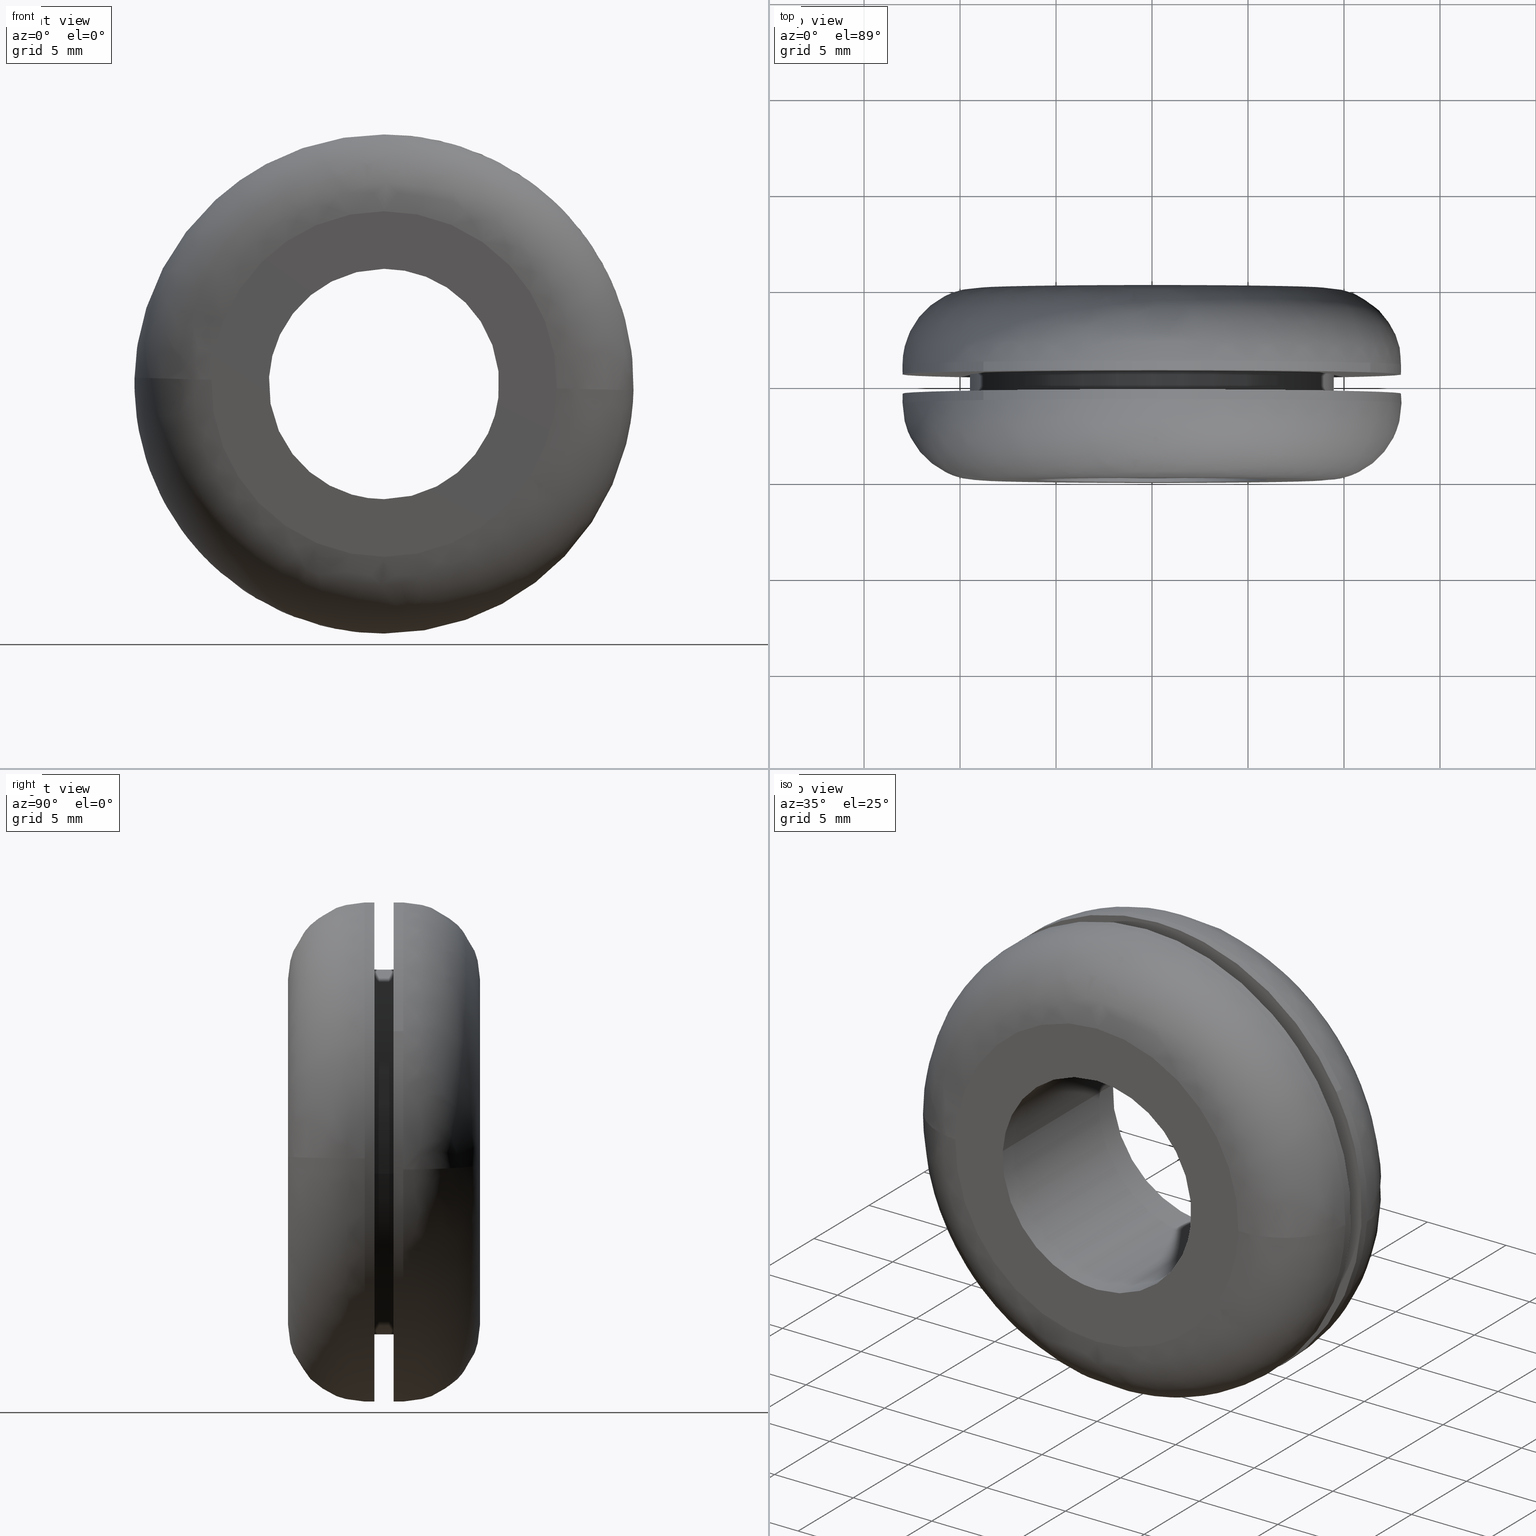
[diagram: canonical four-view strip — front | top / right | iso, engineering-drawing reading convention]
A machine part, canonical four-view strip (front | top / right | iso — engineering-drawing reading convention). The complete STEP part file that produces these views, byte-faithful:
ISO-10303-21;
HEADER;
/****************************************************************
 * Generated by software with PDE/Lib inside                    *
 * PDElib Version 4.4.1-0003, patched  Thursday August 19 11:58 *
 * International Technegroup Inc. (www.iti-oh.com)              *
 ****************************************************************/
FILE_DESCRIPTION((''),'2;1');
FILE_NAME('','2005-12-14T13:37:55',(''),(''),'','CADfix','');
FILE_SCHEMA(('AUTOMOTIVE_DESIGN'));
ENDSEC;
DATA;
#5=APPLICATION_CONTEXT('automotive design');
#6=APPLICATION_PROTOCOL_DEFINITION('Draft International Standard','automotive_design',1998,#5);
#7=PRODUCT_CONTEXT('None',#5,'mechanical');
#8=PRODUCT('grommet','','None',(#7));
#9=PRODUCT_RELATED_PRODUCT_CATEGORY('part','description',(#8));
#10=PRODUCT_DEFINITION_FORMATION('None','None',#8);
#11=PRODUCT_DEFINITION_CONTEXT('part definition',#5,'design');
#12=PRODUCT_DEFINITION('None','None',#10,#11);
#18=(NAMED_UNIT(*)PLANE_ANGLE_UNIT()SI_UNIT($,.RADIAN.));
#19=DIMENSIONAL_EXPONENTS(0.0,0.0,0.0,0.0,0.0,0.0,0.0);
#20=PLANE_ANGLE_MEASURE_WITH_UNIT(PLANE_ANGLE_MEASURE(0.017453292500000),#18);
#24=(CONVERSION_BASED_UNIT('DEGREE',#20)NAMED_UNIT(#19)PLANE_ANGLE_UNIT());
#28=(NAMED_UNIT(*)SI_UNIT($,.STERADIAN.)SOLID_ANGLE_UNIT());
#32=(LENGTH_UNIT()NAMED_UNIT(*)SI_UNIT(.MILLI.,.METRE.));
#34=UNCERTAINTY_MEASURE_WITH_UNIT(LENGTH_MEASURE(0.001000000000000),#32,'DISTANCE_ACCURACY_VALUE','');
#36=(GEOMETRIC_REPRESENTATION_CONTEXT(3)GLOBAL_UNCERTAINTY_ASSIGNED_CONTEXT((#34))GLOBAL_UNIT_ASSIGNED_CONTEXT((#24,#28,#32))REPRESENTATION_CONTEXT('None','None'));
#37=AXIS2_PLACEMENT_3D('',#38,#39,#40);
#38=CARTESIAN_POINT('',(0.0,0.0,0.0));
#39=DIRECTION('',(0.0,0.0,1.0));
#40=DIRECTION('',(1.0,0.0,0.0));
#41=ADVANCED_BREP_SHAPE_REPRESENTATION('',(#37,#1231),#36);
#42=PRODUCT_DEFINITION_SHAPE('','',#12);
#43=SHAPE_DEFINITION_REPRESENTATION(#42,#41);
#44=CARTESIAN_POINT('',(-8.506415541035160,4.512500000000001,-9.830610084996524));
#45=CARTESIAN_POINT('',(0.247661153719898,4.512500000000001,-17.405502528073665));
#46=CARTESIAN_POINT('',(8.782672699003580,4.512500000000001,-9.584605378531608));
#47=CARTESIAN_POINT('',(18.367278077535193,4.512500000000001,-0.801932679528027));
#48=CARTESIAN_POINT('',(9.584605378531608,4.512500000000001,8.782672699003580));
#49=CARTESIAN_POINT('',(0.801932679528027,4.512500000000001,18.367278077535193));
#50=CARTESIAN_POINT('',(-8.782672699003580,4.512500000000001,9.584605378531608));
#51=CARTESIAN_POINT('',(-8.506415541035160,3.987187499999999,-9.830610084996524));
#52=CARTESIAN_POINT('',(0.247661153719898,3.987187500000001,-17.405502528073665));
#53=CARTESIAN_POINT('',(8.782672699003580,3.987187500000000,-9.584605378531608));
#54=CARTESIAN_POINT('',(18.367278077535193,3.987187500000001,-0.801932679528027));
#55=CARTESIAN_POINT('',(9.584605378531608,3.987187500000000,8.782672699003580));
#56=CARTESIAN_POINT('',(0.801932679528027,3.987187500000001,18.367278077535193));
#57=CARTESIAN_POINT('',(-8.782672699003580,3.987187500000000,9.584605378531608));
#65=(BOUNDED_SURFACE()B_SPLINE_SURFACE(2,1,((#44,#51),(#45,#52),(#46,#53),(#47,#54),(#48,#55),(#49,#56),(#50,#57)),.UNSPECIFIED.,.F.,.F.,.U.)B_SPLINE_SURFACE_WITH_KNOTS((3,2,2,3),(2,2),(0.0,19.815976823928860,41.355082067329803,62.894187310730729),(0.0,1.0),.UNSPECIFIED.)GEOMETRIC_REPRESENTATION_ITEM()RATIONAL_B_SPLINE_SURFACE(((0.956886118190660,0.956886118190660),(0.730538238691624,0.730538238691624),(1.0,1.0),(0.707106781186548,0.707106781186548),(1.0,1.0),(0.707106781186548,0.707106781186548),(1.0,1.0)))REPRESENTATION_ITEM('')SURFACE());
#66=CARTESIAN_POINT('',(-8.506415111618846,4.500000000000044,-9.830610456569934));
#67=VERTEX_POINT('',#66);
#68=CARTESIAN_POINT('',(0.0,4.500000000000000,-13.0));
#69=VERTEX_POINT('',#68);
#70=CARTESIAN_POINT('',(-8.506415111618846,4.500000000000044,-9.830610456569934));
#71=CARTESIAN_POINT('',(-4.843645739531268,4.500000000000000,-13.000000000000005));
#72=CARTESIAN_POINT('',(0.0,4.500000000000000,-13.0));
#80=(BOUNDED_CURVE()B_SPLINE_CURVE(2,(#70,#71,#72),.UNSPECIFIED.,.F.,.U.)B_SPLINE_CURVE_WITH_KNOTS((3,3),(0.885882133147832,1.0),.UNSPECIFIED.)CURVE()GEOMETRIC_REPRESENTATION_ITEM()RATIONAL_B_SPLINE_CURVE((0.854663299575205,0.866302602614174,1.0))REPRESENTATION_ITEM(''));
#81=EDGE_CURVE('',#67,#69,#80,.T.);
#82=ORIENTED_EDGE('',*,*,#81,.T.);
#83=CARTESIAN_POINT('',(0.0,4.500000000000000,13.0));
#84=VERTEX_POINT('',#83);
#85=CARTESIAN_POINT('',(0.0,4.500000000000000,-13.0));
#86=CARTESIAN_POINT('',(13.0,4.500000000000000,-13.0));
#87=CARTESIAN_POINT('',(13.0,4.500000000000000,-2.449213E-016));
#88=CARTESIAN_POINT('',(13.0,4.500000000000000,13.0));
#89=CARTESIAN_POINT('',(0.0,4.500000000000000,13.0));
#97=(BOUNDED_CURVE()B_SPLINE_CURVE(2,(#85,#86,#87,#88,#89),.UNSPECIFIED.,.F.,.U.)B_SPLINE_CURVE_WITH_KNOTS((3,2,3),(0.0,0.250000000000000,0.500000000000000),.UNSPECIFIED.)CURVE()GEOMETRIC_REPRESENTATION_ITEM()RATIONAL_B_SPLINE_CURVE((1.0,0.707106781186547,1.0,0.707106781186547,1.0))REPRESENTATION_ITEM(''));
#98=EDGE_CURVE('',#69,#84,#97,.T.);
#99=ORIENTED_EDGE('',*,*,#98,.T.);
#100=CARTESIAN_POINT('',(-8.782672184095716,4.500000000000000,9.584605850357690));
#101=VERTEX_POINT('',#100);
#102=CARTESIAN_POINT('',(0.0,4.500000000000000,13.0));
#103=CARTESIAN_POINT('',(-5.055422710082569,4.500000000000000,13.000000000000002));
#104=CARTESIAN_POINT('',(-8.782672184095716,4.500000000000001,9.584605850357690));
#112=(BOUNDED_CURVE()B_SPLINE_CURVE(2,(#102,#103,#104),.UNSPECIFIED.,.F.,.U.)B_SPLINE_CURVE_WITH_KNOTS((3,3),(0.500000000000000,0.618415192864190),.UNSPECIFIED.)CURVE()GEOMETRIC_REPRESENTATION_ITEM()RATIONAL_B_SPLINE_CURVE((1.0,0.861267972022367,0.853959782840026))REPRESENTATION_ITEM(''));
#113=EDGE_CURVE('',#84,#101,#112,.T.);
#114=ORIENTED_EDGE('',*,*,#113,.T.);
#115=CARTESIAN_POINT('',(-8.782672160673663,4.000002019822239,9.584605871818566));
#116=VERTEX_POINT('',#115);
#117=CARTESIAN_POINT('',(-8.782672184095716,4.500000000000000,9.584605850357690));
#118=CARTESIAN_POINT('',(-8.782672160673663,4.000002019822239,9.584605871818566));
#119=QUASI_UNIFORM_CURVE('',1,(#117,#118),.UNSPECIFIED.,.F.,.U.);
#120=EDGE_CURVE('',#101,#116,#119,.T.);
#121=ORIENTED_EDGE('',*,*,#120,.T.);
#122=CARTESIAN_POINT('',(0.0,4.0,13.0));
#123=VERTEX_POINT('',#122);
#124=CARTESIAN_POINT('',(0.0,4.0,13.0));
#125=CARTESIAN_POINT('',(-5.055422673511163,4.000000842962812,12.999999999999972));
#126=CARTESIAN_POINT('',(-8.782672160673663,4.000002019822239,9.584605871818566));
#134=(BOUNDED_CURVE()B_SPLINE_CURVE(2,(#124,#125,#126),.UNSPECIFIED.,.F.,.U.)B_SPLINE_CURVE_WITH_KNOTS((3,3),(0.500000000000000,0.618415192126431),.UNSPECIFIED.)CURVE()GEOMETRIC_REPRESENTATION_ITEM()RATIONAL_B_SPLINE_CURVE((1.0,0.861267972886705,0.853959782931090))REPRESENTATION_ITEM(''));
#135=EDGE_CURVE('',#123,#116,#134,.T.);
#136=ORIENTED_EDGE('',*,*,#135,.F.);
#137=CARTESIAN_POINT('',(12.995894645944650,4.000004227741041,-0.326683870640508));
#138=VERTEX_POINT('',#137);
#139=CARTESIAN_POINT('',(12.995894645944643,4.000004227741041,-0.326683870640508));
#140=CARTESIAN_POINT('',(12.999999999993484,4.000004201835933,-0.163367730796137));
#141=CARTESIAN_POINT('',(12.999999999993520,4.000004175271455,1.632349E-013));
#142=CARTESIAN_POINT('',(12.999999999996801,4.000002061400934,13.000000000000082));
#143=CARTESIAN_POINT('',(0.0,4.0,13.0));
#151=(BOUNDED_CURVE()B_SPLINE_CURVE(2,(#139,#140,#141,#142,#143),.UNSPECIFIED.,.F.,.U.)B_SPLINE_CURVE_WITH_KNOTS((3,2,3),(0.245579991001986,0.250000000000000,0.500000000000000),.UNSPECIFIED.)CURVE()GEOMETRIC_REPRESENTATION_ITEM()RATIONAL_B_SPLINE_CURVE((0.989826381975178,0.994821637349549,1.0,0.707106781186547,1.0))REPRESENTATION_ITEM(''));
#152=EDGE_CURVE('',#138,#123,#151,.T.);
#153=ORIENTED_EDGE('',*,*,#152,.F.);
#154=CARTESIAN_POINT('',(0.0,4.0,-13.0));
#155=VERTEX_POINT('',#154);
#156=CARTESIAN_POINT('',(0.0,4.0,-13.0));
#157=CARTESIAN_POINT('',(12.677319582069439,4.000002113870520,-12.999999999999917));
#158=CARTESIAN_POINT('',(12.995894645944643,4.000004227741041,-0.326683870640508));
#166=(BOUNDED_CURVE()B_SPLINE_CURVE(2,(#156,#157,#158),.UNSPECIFIED.,.F.,.U.)B_SPLINE_CURVE_WITH_KNOTS((3,3),(0.0,0.245579991001986),.UNSPECIFIED.)CURVE()GEOMETRIC_REPRESENTATION_ITEM()RATIONAL_B_SPLINE_CURVE((1.0,0.712285143836998,0.989826381975178))REPRESENTATION_ITEM(''));
#167=EDGE_CURVE('',#155,#138,#166,.T.);
#168=ORIENTED_EDGE('',*,*,#167,.F.);
#169=CARTESIAN_POINT('',(-8.506415116792454,4.000001864216555,-9.830610452092005));
#170=VERTEX_POINT('',#169);
#171=CARTESIAN_POINT('',(-8.506415116792454,4.000001864216554,-9.830610452092005));
#172=CARTESIAN_POINT('',(-4.843645747323591,4.000000768053528,-13.000000000000034));
#173=CARTESIAN_POINT('',(0.0,4.0,-13.0));
#181=(BOUNDED_CURVE()B_SPLINE_CURVE(2,(#171,#172,#173),.UNSPECIFIED.,.F.,.U.)B_SPLINE_CURVE_WITH_KNOTS((3,3),(0.885882132988764,1.0),.UNSPECIFIED.)CURVE()GEOMETRIC_REPRESENTATION_ITEM()RATIONAL_B_SPLINE_CURVE((0.854663299542757,0.866302602427814,1.0))REPRESENTATION_ITEM(''));
#182=EDGE_CURVE('',#170,#155,#181,.T.);
#183=ORIENTED_EDGE('',*,*,#182,.F.);
#184=CARTESIAN_POINT('',(-8.506415111618846,4.500000000000044,-9.830610456569934));
#185=CARTESIAN_POINT('',(-8.506415116792454,4.000001864216555,-9.830610452092005));
#186=QUASI_UNIFORM_CURVE('',1,(#184,#185),.UNSPECIFIED.,.F.,.U.);
#187=EDGE_CURVE('',#67,#170,#186,.T.);
#188=ORIENTED_EDGE('',*,*,#187,.F.);
#189=EDGE_LOOP('',(#82,#99,#114,#121,#136,#153,#168,#183,#188));
#190=FACE_OUTER_BOUND('',#189,.T.);
#191=ADVANCED_FACE('',(#190),#65,.T.);
#192=CARTESIAN_POINT('',(-8.782672699003580,4.512500000000001,9.584605378531608));
#193=CARTESIAN_POINT('',(-18.367278077535193,4.512500000000001,0.801932679528027));
#194=CARTESIAN_POINT('',(-9.584605378531608,4.512500000000001,-8.782672699003580));
#195=CARTESIAN_POINT('',(-9.075861780746536,4.512500000000002,-9.337868912130995));
#196=CARTESIAN_POINT('',(-8.506415541035160,4.512500000000001,-9.830610084996524));
#197=CARTESIAN_POINT('',(-8.782672699003580,3.987187500000000,9.584605378531608));
#198=CARTESIAN_POINT('',(-18.367278077535193,3.987187500000001,0.801932679528027));
#199=CARTESIAN_POINT('',(-9.584605378531608,3.987187500000000,-8.782672699003580));
#200=CARTESIAN_POINT('',(-9.075861780746536,3.987187500000000,-9.337868912130995));
#201=CARTESIAN_POINT('',(-8.506415541035160,3.987187499999999,-9.830610084996524));
#209=(BOUNDED_SURFACE()B_SPLINE_SURFACE(2,1,((#192,#197),(#193,#198),(#194,#199),(#195,#200),(#196,#201)),.UNSPECIFIED.,.F.,.F.,.U.)B_SPLINE_SURFACE_WITH_KNOTS((3,2,3),(2,2),(0.0,21.539105243400940,23.262233662873012),(0.0,1.0),.UNSPECIFIED.)GEOMETRIC_REPRESENTATION_ITEM()RATIONAL_B_SPLINE_SURFACE(((1.0,1.0),(0.707106781186548,0.707106781186548),(1.0,1.0),(0.976568542494924,0.976568542494924),(0.956886118190660,0.956886118190660)))REPRESENTATION_ITEM('')SURFACE());
#210=CARTESIAN_POINT('',(-8.782672184095716,4.500000000000000,9.584605850357690));
#211=CARTESIAN_POINT('',(-13.000000000000005,4.500000000000000,5.720137735199798));
#212=CARTESIAN_POINT('',(-13.0,4.500000000000000,-2.449213E-016));
#213=CARTESIAN_POINT('',(-13.0,4.499999999999999,-5.942317334354285));
#214=CARTESIAN_POINT('',(-8.506415111618846,4.500000000000044,-9.830610456569934));
#222=(BOUNDED_CURVE()B_SPLINE_CURVE(2,(#210,#211,#212,#213,#214),.UNSPECIFIED.,.F.,.U.)B_SPLINE_CURVE_WITH_KNOTS((3,2,3),(0.618415192864190,0.750000000000000,0.885882133147832),.UNSPECIFIED.)CURVE()GEOMETRIC_REPRESENTATION_ITEM()RATIONAL_B_SPLINE_CURVE((0.853959782840026,0.845838809164180,1.0,0.840804178572373,0.854663299575205))REPRESENTATION_ITEM(''));
#223=EDGE_CURVE('',#101,#67,#222,.T.);
#224=ORIENTED_EDGE('',*,*,#223,.T.);
#225=ORIENTED_EDGE('',*,*,#187,.T.);
#226=CARTESIAN_POINT('',(-12.995894645944650,4.000004227741041,0.326683870640511));
#227=VERTEX_POINT('',#226);
#228=CARTESIAN_POINT('',(-12.995894645944643,4.000004227741041,0.326683870640511));
#229=CARTESIAN_POINT('',(-12.999999999993484,4.000004201835933,0.163367730796139));
#230=CARTESIAN_POINT('',(-12.999999999993520,4.000004175271455,-1.605999E-013));
#231=CARTESIAN_POINT('',(-12.999999999995021,4.000003209018423,-5.942317326080990));
#232=CARTESIAN_POINT('',(-8.506415116792454,4.000001864216555,-9.830610452092005));
#240=(BOUNDED_CURVE()B_SPLINE_CURVE(2,(#228,#229,#230,#231,#232),.UNSPECIFIED.,.F.,.U.)B_SPLINE_CURVE_WITH_KNOTS((3,2,3),(0.745579991001986,0.750000000000000,0.885882132988763),.UNSPECIFIED.)CURVE()GEOMETRIC_REPRESENTATION_ITEM()RATIONAL_B_SPLINE_CURVE((0.989826381975178,0.994821637349549,1.0,0.840804178758734,0.854663299542757))REPRESENTATION_ITEM(''));
#241=EDGE_CURVE('',#227,#170,#240,.T.);
#242=ORIENTED_EDGE('',*,*,#241,.F.);
#243=CARTESIAN_POINT('',(-8.782672160673663,4.000002019822239,9.584605871818566));
#244=CARTESIAN_POINT('',(-12.857023522965608,4.000003306276663,5.851151546622697));
#245=CARTESIAN_POINT('',(-12.995894645944643,4.000004227741041,0.326683870640511));
#253=(BOUNDED_CURVE()B_SPLINE_CURVE(2,(#243,#244,#245),.UNSPECIFIED.,.F.,.U.)B_SPLINE_CURVE_WITH_KNOTS((3,3),(0.618415192126431,0.745579991001986),.UNSPECIFIED.)CURVE()GEOMETRIC_REPRESENTATION_ITEM()RATIONAL_B_SPLINE_CURVE((0.853959782931090,0.846111596485066,0.989826381975178))REPRESENTATION_ITEM(''));
#254=EDGE_CURVE('',#116,#227,#253,.T.);
#255=ORIENTED_EDGE('',*,*,#254,.F.);
#256=ORIENTED_EDGE('',*,*,#120,.F.);
#257=EDGE_LOOP('',(#224,#225,#242,#255,#256));
#258=FACE_OUTER_BOUND('',#257,.T.);
#259=ADVANCED_FACE('',(#258),#209,.T.);
#260=CARTESIAN_POINT('',(9.433590500454830,5.525000000000002,-1.121325229239206));
#261=CARTESIAN_POINT('',(9.465682346761753,5.525000000000002,-0.851339922060788));
#262=CARTESIAN_POINT('',(9.482280585007734,5.525000000000001,-0.579961125581142));
#263=CARTESIAN_POINT('',(10.062241710588875,5.525000000000000,8.902319459426593));
#264=CARTESIAN_POINT('',(0.579961125581141,5.525000000000001,9.482280585007734));
#265=CARTESIAN_POINT('',(-8.902319459426593,5.525000000000000,10.062241710588875));
#266=CARTESIAN_POINT('',(-9.482280585007734,5.525000000000001,0.579961125581141));
#267=CARTESIAN_POINT('',(9.433590500454830,4.474375000000001,-1.121325229239206));
#268=CARTESIAN_POINT('',(9.465682346761753,4.474375000000000,-0.851339922060788));
#269=CARTESIAN_POINT('',(9.482280585007734,4.474375000000000,-0.579961125581142));
#270=CARTESIAN_POINT('',(10.062241710588875,4.474375000000000,8.902319459426593));
#271=CARTESIAN_POINT('',(0.579961125581141,4.474375000000000,9.482280585007734));
#272=CARTESIAN_POINT('',(-8.902319459426593,4.474375000000000,10.062241710588875));
#273=CARTESIAN_POINT('',(-9.482280585007734,4.474375000000000,0.579961125581141));
#281=(BOUNDED_SURFACE()B_SPLINE_SURFACE(2,1,((#260,#267),(#261,#268),(#262,#269),(#263,#270),(#264,#271),(#265,#272),(#266,#273)),.UNSPECIFIED.,.F.,.F.,.U.)B_SPLINE_SURFACE_WITH_KNOTS((3,2,2,3),(2,2),(0.0,0.629604614807105,16.369719984984709,32.109835355162318),(0.0,1.0),.UNSPECIFIED.)GEOMETRIC_REPRESENTATION_ITEM()RATIONAL_B_SPLINE_SURFACE(((0.977505800795127,0.977505800795127),(0.988284271247462,0.988284271247462),(1.0,1.0),(0.707106781186548,0.707106781186548),(1.0,1.0),(0.707106781186548,0.707106781186548),(1.0,1.0)))REPRESENTATION_ITEM('')SURFACE());
#282=CARTESIAN_POINT('',(9.433591134767447,4.499999999999799,-1.121319892808525));
#283=VERTEX_POINT('',#282);
#284=CARTESIAN_POINT('',(0.0,4.500000000000000,9.500000000000000));
#285=VERTEX_POINT('',#284);
#286=CARTESIAN_POINT('',(9.433591134767447,4.499999999999799,-1.121319892808525));
#287=CARTESIAN_POINT('',(9.500000000000002,4.500000000000001,-0.562626440270001));
#288=CARTESIAN_POINT('',(9.500000000000000,4.500000000000000,-2.449213E-016));
#289=CARTESIAN_POINT('',(9.500000000000000,4.500000000000000,9.500000000000000));
#290=CARTESIAN_POINT('',(0.0,4.500000000000000,9.500000000000000));
#298=(BOUNDED_CURVE()B_SPLINE_CURVE(2,(#286,#287,#288,#289,#290),.UNSPECIFIED.,.F.,.U.)B_SPLINE_CURVE_WITH_KNOTS((3,2,3),(0.229562569118072,0.250000000000000,0.500000000000000),.UNSPECIFIED.)CURVE()GEOMETRIC_REPRESENTATION_ITEM()RATIONAL_B_SPLINE_CURVE((0.956026941572643,0.976056060338859,1.0,0.707106781186548,1.0))REPRESENTATION_ITEM(''));
#299=EDGE_CURVE('',#283,#285,#298,.T.);
#300=ORIENTED_EDGE('',*,*,#299,.F.);
#301=CARTESIAN_POINT('',(9.433591126934383,5.500000000000000,-1.121319958707903));
#302=VERTEX_POINT('',#301);
#303=CARTESIAN_POINT('',(9.433591126934383,5.500000000000000,-1.121319958707903));
#304=CARTESIAN_POINT('',(9.433591134767447,4.499999999999799,-1.121319892808525));
#305=QUASI_UNIFORM_CURVE('',1,(#303,#304),.UNSPECIFIED.,.F.,.U.);
#306=EDGE_CURVE('',#302,#283,#305,.T.);
#307=ORIENTED_EDGE('',*,*,#306,.F.);
#308=CARTESIAN_POINT('',(0.0,5.500000000000000,9.500000000000000));
#309=VERTEX_POINT('',#308);
#310=CARTESIAN_POINT('',(9.433591126934383,5.500000000000000,-1.121319958707903));
#311=CARTESIAN_POINT('',(9.500000000000000,5.500000000000000,-0.562626473568023));
#312=CARTESIAN_POINT('',(9.500000000000000,5.500000000000000,-2.449213E-016));
#313=CARTESIAN_POINT('',(9.500000000000000,5.500000000000001,9.500000000000000));
#314=CARTESIAN_POINT('',(0.0,5.500000000000000,9.500000000000000));
#322=(BOUNDED_CURVE()B_SPLINE_CURVE(2,(#310,#311,#312,#313,#314),.UNSPECIFIED.,.F.,.U.)B_SPLINE_CURVE_WITH_KNOTS((3,2,3),(0.229562567937482,0.250000000000000,0.500000000000000),.UNSPECIFIED.)CURVE()GEOMETRIC_REPRESENTATION_ITEM()RATIONAL_B_SPLINE_CURVE((0.956026939258635,0.976056058955711,1.0,0.707106781186548,1.0))REPRESENTATION_ITEM(''));
#323=EDGE_CURVE('',#302,#309,#322,.T.);
#324=ORIENTED_EDGE('',*,*,#323,.T.);
#325=CARTESIAN_POINT('',(-9.482281025216306,5.500000000000000,0.579953928144975));
#326=VERTEX_POINT('',#325);
#327=CARTESIAN_POINT('',(0.0,5.500000000000000,9.500000000000000));
#328=CARTESIAN_POINT('',(-8.936714431606257,5.499999999999999,9.500000000000000));
#329=CARTESIAN_POINT('',(-9.482281025216306,5.500000000000000,0.579953928144975));
#337=(BOUNDED_CURVE()B_SPLINE_CURVE(2,(#327,#328,#329),.UNSPECIFIED.,.F.,.U.)B_SPLINE_CURVE_WITH_KNOTS((3,3),(0.500000000000000,0.739333093212004),.UNSPECIFIED.)CURVE()GEOMETRIC_REPRESENTATION_ITEM()RATIONAL_B_SPLINE_CURVE((1.0,0.719603839842224,0.976072322367080))REPRESENTATION_ITEM(''));
#338=EDGE_CURVE('',#309,#326,#337,.T.);
#339=ORIENTED_EDGE('',*,*,#338,.T.);
#340=CARTESIAN_POINT('',(-9.482281030719834,4.499999999999723,0.579953838160817));
#341=VERTEX_POINT('',#340);
#342=CARTESIAN_POINT('',(-9.482281025216306,5.500000000000000,0.579953928144975));
#343=CARTESIAN_POINT('',(-9.482281030719834,4.499999999999723,0.579953838160817));
#344=QUASI_UNIFORM_CURVE('',1,(#342,#343),.UNSPECIFIED.,.F.,.U.);
#345=EDGE_CURVE('',#326,#341,#344,.T.);
#346=ORIENTED_EDGE('',*,*,#345,.T.);
#347=CARTESIAN_POINT('',(0.0,4.500000000000000,9.500000000000000));
#348=CARTESIAN_POINT('',(-8.936714516571614,4.500000000000000,9.499999999999998));
#349=CARTESIAN_POINT('',(-9.482281030719832,4.499999999999723,0.579953838160817));
#357=(BOUNDED_CURVE()B_SPLINE_CURVE(2,(#347,#348,#349),.UNSPECIFIED.,.F.,.U.)B_SPLINE_CURVE_WITH_KNOTS((3,3),(0.500000000000000,0.739333094849425),.UNSPECIFIED.)CURVE()GEOMETRIC_REPRESENTATION_ITEM()RATIONAL_B_SPLINE_CURVE((1.0,0.719603837923867,0.976072325876388))REPRESENTATION_ITEM(''));
#358=EDGE_CURVE('',#285,#341,#357,.T.);
#359=ORIENTED_EDGE('',*,*,#358,.F.);
#360=EDGE_LOOP('',(#300,#307,#324,#339,#346,#359));
#361=FACE_OUTER_BOUND('',#360,.T.);
#362=ADVANCED_FACE('',(#361),#281,.T.);
#363=CARTESIAN_POINT('',(-9.482280585007734,5.525000000000001,0.579961125581141));
#364=CARTESIAN_POINT('',(-10.062241710588875,5.525000000000000,-8.902319459426593));
#365=CARTESIAN_POINT('',(-0.579961125581141,5.525000000000001,-9.482280585007734));
#366=CARTESIAN_POINT('',(8.374663162975260,5.525000000000000,-10.029968868959012));
#367=CARTESIAN_POINT('',(9.433590500454830,5.525000000000002,-1.121325229239206));
#368=CARTESIAN_POINT('',(-9.482280585007734,4.474375000000000,0.579961125581141));
#369=CARTESIAN_POINT('',(-10.062241710588875,4.474375000000000,-8.902319459426593));
#370=CARTESIAN_POINT('',(-0.579961125581141,4.474375000000000,-9.482280585007734));
#371=CARTESIAN_POINT('',(8.374663162975260,4.474375000000002,-10.029968868959012));
#372=CARTESIAN_POINT('',(9.433590500454830,4.474375000000001,-1.121325229239206));
#380=(BOUNDED_SURFACE()B_SPLINE_SURFACE(2,1,((#363,#368),(#364,#369),(#365,#370),(#366,#371),(#367,#372)),.UNSPECIFIED.,.F.,.F.,.U.)B_SPLINE_SURFACE_WITH_KNOTS((3,2,3),(2,2),(0.0,15.740115370177611,30.850626125548111),(0.0,1.0),.UNSPECIFIED.)GEOMETRIC_REPRESENTATION_ITEM()RATIONAL_B_SPLINE_SURFACE(((1.0,1.0),(0.707106781186548,0.707106781186548),(1.0,1.0),(0.718822509939086,0.718822509939086),(0.977505800795127,0.977505800795127)))REPRESENTATION_ITEM('')SURFACE());
#381=CARTESIAN_POINT('',(0.0,4.500000000000000,-9.500000000000000));
#382=VERTEX_POINT('',#381);
#383=CARTESIAN_POINT('',(0.0,4.500000000000000,-9.500000000000000));
#384=CARTESIAN_POINT('',(8.437662803187280,4.500000000000000,-9.500000000000000));
#385=CARTESIAN_POINT('',(9.433591134767447,4.499999999999799,-1.121319892808525));
#393=(BOUNDED_CURVE()B_SPLINE_CURVE(2,(#383,#384,#385),.UNSPECIFIED.,.F.,.U.)B_SPLINE_CURVE_WITH_KNOTS((3,3),(0.0,0.229562569118072),.UNSPECIFIED.)CURVE()GEOMETRIC_REPRESENTATION_ITEM()RATIONAL_B_SPLINE_CURVE((1.0,0.731050720847689,0.956026941572643))REPRESENTATION_ITEM(''));
#394=EDGE_CURVE('',#382,#283,#393,.T.);
#395=ORIENTED_EDGE('',*,*,#394,.F.);
#396=CARTESIAN_POINT('',(-9.482281030719832,4.499999999999723,0.579953838160817));
#397=CARTESIAN_POINT('',(-9.500000000000000,4.500000000000000,0.290247597410037));
#398=CARTESIAN_POINT('',(-9.500000000000000,4.500000000000000,-2.449213E-016));
#399=CARTESIAN_POINT('',(-9.500000000000000,4.500000000000000,-9.500000000000000));
#400=CARTESIAN_POINT('',(0.0,4.500000000000000,-9.500000000000000));
#408=(BOUNDED_CURVE()B_SPLINE_CURVE(2,(#396,#397,#398,#399,#400),.UNSPECIFIED.,.F.,.U.)B_SPLINE_CURVE_WITH_KNOTS((3,2,3),(0.739333094849425,0.750000000000000,1.0),.UNSPECIFIED.)CURVE()GEOMETRIC_REPRESENTATION_ITEM()RATIONAL_B_SPLINE_CURVE((0.976072325876388,0.987502943262681,1.0,0.707106781186548,1.0))REPRESENTATION_ITEM(''));
#409=EDGE_CURVE('',#341,#382,#408,.T.);
#410=ORIENTED_EDGE('',*,*,#409,.F.);
#411=ORIENTED_EDGE('',*,*,#345,.F.);
#412=CARTESIAN_POINT('',(0.0,5.500000000000000,-9.500000000000000));
#413=VERTEX_POINT('',#412);
#414=CARTESIAN_POINT('',(-9.482281025216306,5.500000000000000,0.579953928144975));
#415=CARTESIAN_POINT('',(-9.500000000000000,5.500000000000000,0.290247642528265));
#416=CARTESIAN_POINT('',(-9.500000000000000,5.500000000000000,-2.449213E-016));
#417=CARTESIAN_POINT('',(-9.500000000000000,5.500000000000001,-9.500000000000000));
#418=CARTESIAN_POINT('',(0.0,5.500000000000000,-9.500000000000000));
#426=(BOUNDED_CURVE()B_SPLINE_CURVE(2,(#414,#415,#416,#417,#418),.UNSPECIFIED.,.F.,.U.)B_SPLINE_CURVE_WITH_KNOTS((3,2,3),(0.739333093212004,0.750000000000000,1.0),.UNSPECIFIED.)CURVE()GEOMETRIC_REPRESENTATION_ITEM()RATIONAL_B_SPLINE_CURVE((0.976072322367080,0.987502941344323,1.0,0.707106781186548,1.0))REPRESENTATION_ITEM(''));
#427=EDGE_CURVE('',#326,#413,#426,.T.);
#428=ORIENTED_EDGE('',*,*,#427,.T.);
#429=CARTESIAN_POINT('',(0.0,5.500000000000000,-9.500000000000000));
#430=CARTESIAN_POINT('',(8.437662743830138,5.499999999999999,-9.499999999999998));
#431=CARTESIAN_POINT('',(9.433591126934383,5.500000000000000,-1.121319958707903));
#439=(BOUNDED_CURVE()B_SPLINE_CURVE(2,(#429,#430,#431),.UNSPECIFIED.,.F.,.U.)B_SPLINE_CURVE_WITH_KNOTS((3,3),(0.0,0.229562567937482),.UNSPECIFIED.)CURVE()GEOMETRIC_REPRESENTATION_ITEM()RATIONAL_B_SPLINE_CURVE((1.0,0.731050722230837,0.956026939258634))REPRESENTATION_ITEM(''));
#440=EDGE_CURVE('',#413,#302,#439,.T.);
#441=ORIENTED_EDGE('',*,*,#440,.T.);
#442=ORIENTED_EDGE('',*,*,#306,.T.);
#443=EDGE_LOOP('',(#395,#410,#411,#428,#441,#442));
#444=FACE_OUTER_BOUND('',#443,.T.);
#445=ADVANCED_FACE('',(#444),#380,.T.);
#446=CARTESIAN_POINT('',(11.374303556760694,6.012499999999999,6.294856519306929));
#447=CARTESIAN_POINT('',(10.627105983358849,6.012500000000000,7.644982926585762));
#448=CARTESIAN_POINT('',(9.584605378531608,6.012500000000000,8.782672699003580));
#449=CARTESIAN_POINT('',(0.801932679528027,6.012499999999999,18.367278077535193));
#450=CARTESIAN_POINT('',(-8.782672699003580,6.012500000000000,9.584605378531608));
#451=CARTESIAN_POINT('',(11.374303556760694,5.487187499999998,6.294856519306929));
#452=CARTESIAN_POINT('',(10.627105983358849,5.487187499999999,7.644982926585762));
#453=CARTESIAN_POINT('',(9.584605378531608,5.487187499999999,8.782672699003580));
#454=CARTESIAN_POINT('',(0.801932679528027,5.487187500000000,18.367278077535193));
#455=CARTESIAN_POINT('',(-8.782672699003580,5.487187499999999,9.584605378531608));
#463=(BOUNDED_SURFACE()B_SPLINE_SURFACE(2,1,((#446,#451),(#447,#452),(#448,#453),(#449,#454),(#450,#455)),.UNSPECIFIED.,.F.,.F.,.U.)B_SPLINE_SURFACE_WITH_KNOTS((3,2,3),(2,2),(0.0,3.446256838944155,24.985362082345091),(0.0,1.0),.UNSPECIFIED.)GEOMETRIC_REPRESENTATION_ITEM()RATIONAL_B_SPLINE_SURFACE(((0.921270302782944,0.921270302782944),(0.953137084989848,0.953137084989848),(1.0,1.0),(0.707106781186548,0.707106781186548),(1.0,1.0)))REPRESENTATION_ITEM('')SURFACE());
#464=CARTESIAN_POINT('',(11.374304720858300,5.999994954303111,6.294854415866223));
#465=VERTEX_POINT('',#464);
#466=CARTESIAN_POINT('',(0.0,6.0,13.0));
#467=VERTEX_POINT('',#466);
#468=CARTESIAN_POINT('',(11.374304720858298,5.999994954303111,6.294854415866223));
#469=CARTESIAN_POINT('',(7.663491943716938,5.999997917120351,13.000000000000275));
#470=CARTESIAN_POINT('',(0.0,6.0,13.0));
#478=(BOUNDED_CURVE()B_SPLINE_CURVE(2,(#468,#469,#470),.UNSPECIFIED.,.F.,.U.)B_SPLINE_CURVE_WITH_KNOTS((3,3),(0.332484260513103,0.500000000000000),.UNSPECIFIED.)CURVE()GEOMETRIC_REPRESENTATION_ITEM()RATIONAL_B_SPLINE_CURVE((0.870495160132599,0.803743103439068,1.0))REPRESENTATION_ITEM(''));
#479=EDGE_CURVE('',#465,#467,#478,.T.);
#480=ORIENTED_EDGE('',*,*,#479,.T.);
#481=CARTESIAN_POINT('',(-8.782672170068333,5.999996391977601,9.584605863207582));
#482=VERTEX_POINT('',#481);
#483=CARTESIAN_POINT('',(0.0,6.0,13.0));
#484=CARTESIAN_POINT('',(-5.055422688182448,5.999998499428219,12.999999999999956));
#485=CARTESIAN_POINT('',(-8.782672170068333,5.999996391977600,9.584605863207582));
#493=(BOUNDED_CURVE()B_SPLINE_CURVE(2,(#483,#484,#485),.UNSPECIFIED.,.F.,.U.)B_SPLINE_CURVE_WITH_KNOTS((3,3),(0.500000000000000,0.618415192422450),.UNSPECIFIED.)CURVE()GEOMETRIC_REPRESENTATION_ITEM()RATIONAL_B_SPLINE_CURVE((1.0,0.861267972539898,0.853959782894552))REPRESENTATION_ITEM(''));
#494=EDGE_CURVE('',#467,#482,#493,.T.);
#495=ORIENTED_EDGE('',*,*,#494,.T.);
#496=CARTESIAN_POINT('',(-8.782672184095720,5.500000000000000,9.584605850357686));
#497=VERTEX_POINT('',#496);
#498=CARTESIAN_POINT('',(-8.782672170068333,5.999996391977601,9.584605863207582));
#499=CARTESIAN_POINT('',(-8.782672184095720,5.500000000000000,9.584605850357686));
#500=QUASI_UNIFORM_CURVE('',1,(#498,#499),.UNSPECIFIED.,.F.,.U.);
#501=EDGE_CURVE('',#482,#497,#500,.T.);
#502=ORIENTED_EDGE('',*,*,#501,.T.);
#503=CARTESIAN_POINT('',(0.0,5.500000000000000,13.0));
#504=VERTEX_POINT('',#503);
#505=CARTESIAN_POINT('',(0.0,5.500000000000000,13.0));
#506=CARTESIAN_POINT('',(-5.055422710082569,5.500000000000000,13.000000000000002));
#507=CARTESIAN_POINT('',(-8.782672184095720,5.500000000000000,9.584605850357686));
#515=(BOUNDED_CURVE()B_SPLINE_CURVE(2,(#505,#506,#507),.UNSPECIFIED.,.F.,.U.)B_SPLINE_CURVE_WITH_KNOTS((3,3),(0.500000000000000,0.618415192864190),.UNSPECIFIED.)CURVE()GEOMETRIC_REPRESENTATION_ITEM()RATIONAL_B_SPLINE_CURVE((1.0,0.861267972022367,0.853959782840026))REPRESENTATION_ITEM(''));
#516=EDGE_CURVE('',#504,#497,#515,.T.);
#517=ORIENTED_EDGE('',*,*,#516,.F.);
#518=CARTESIAN_POINT('',(11.374304629129410,5.499999999999999,6.294854581621429));
#519=VERTEX_POINT('',#518);
#520=CARTESIAN_POINT('',(11.374304629129410,5.499999999999999,6.294854581621429));
#521=CARTESIAN_POINT('',(7.663491816078668,5.500000000000000,13.000000000000002));
#522=CARTESIAN_POINT('',(0.0,5.500000000000000,13.0));
#530=(BOUNDED_CURVE()B_SPLINE_CURVE(2,(#520,#521,#522),.UNSPECIFIED.,.F.,.U.)B_SPLINE_CURVE_WITH_KNOTS((3,3),(0.332484262755645,0.500000000000000),.UNSPECIFIED.)CURVE()GEOMETRIC_REPRESENTATION_ITEM()RATIONAL_B_SPLINE_CURVE((0.870495158345373,0.803743106066369,1.0))REPRESENTATION_ITEM(''));
#531=EDGE_CURVE('',#519,#504,#530,.T.);
#532=ORIENTED_EDGE('',*,*,#531,.F.);
#533=CARTESIAN_POINT('',(11.374304720858300,5.999994954303111,6.294854415866223));
#534=CARTESIAN_POINT('',(11.374304629129410,5.499999999999999,6.294854581621429));
#535=QUASI_UNIFORM_CURVE('',1,(#533,#534),.UNSPECIFIED.,.F.,.U.);
#536=EDGE_CURVE('',#465,#519,#535,.T.);
#537=ORIENTED_EDGE('',*,*,#536,.F.);
#538=EDGE_LOOP('',(#480,#495,#502,#517,#532,#537));
#539=FACE_OUTER_BOUND('',#538,.T.);
#540=ADVANCED_FACE('',(#539),#463,.T.);
#541=CARTESIAN_POINT('',(-8.782672699003580,6.012500000000000,9.584605378531608));
#542=CARTESIAN_POINT('',(-18.367278077535193,6.012499999999999,0.801932679528027));
#543=CARTESIAN_POINT('',(-9.584605378531608,6.012500000000000,-8.782672699003580));
#544=CARTESIAN_POINT('',(-0.801932679528027,6.012499999999999,-18.367278077535193));
#545=CARTESIAN_POINT('',(8.782672699003580,6.012500000000000,-9.584605378531608));
#546=CARTESIAN_POINT('',(16.333327816270327,6.012500000000000,-2.665704710325894));
#547=CARTESIAN_POINT('',(11.374303556760694,6.012499999999999,6.294856519306929));
#548=CARTESIAN_POINT('',(-8.782672699003580,5.487187499999999,9.584605378531608));
#549=CARTESIAN_POINT('',(-18.367278077535193,5.487187500000000,0.801932679528027));
#550=CARTESIAN_POINT('',(-9.584605378531608,5.487187499999999,-8.782672699003580));
#551=CARTESIAN_POINT('',(-0.801932679528027,5.487187500000000,-18.367278077535193));
#552=CARTESIAN_POINT('',(8.782672699003580,5.487187499999999,-9.584605378531608));
#553=CARTESIAN_POINT('',(16.333327816270327,5.487187499999999,-2.665704710325894));
#554=CARTESIAN_POINT('',(11.374303556760694,5.487187499999998,6.294856519306929));
#562=(BOUNDED_SURFACE()B_SPLINE_SURFACE(2,1,((#541,#548),(#542,#549),(#543,#550),(#544,#551),(#545,#552),(#546,#553),(#547,#554)),.UNSPECIFIED.,.F.,.F.,.U.)B_SPLINE_SURFACE_WITH_KNOTS((3,2,2,3),(2,2),(0.0,21.539105243400940,43.078210486801872,61.171058891258653),(0.0,1.0),.UNSPECIFIED.)GEOMETRIC_REPRESENTATION_ITEM()RATIONAL_B_SPLINE_SURFACE(((1.0,1.0),(0.707106781186548,0.707106781186548),(1.0,1.0),(0.707106781186548,0.707106781186548),(1.0,1.0),(0.753969696196700,0.753969696196700),(0.921270302782944,0.921270302782944)))REPRESENTATION_ITEM('')SURFACE());
#563=CARTESIAN_POINT('',(12.968353783879341,5.999992422170896,-0.906531927605974));
#564=VERTEX_POINT('',#563);
#565=CARTESIAN_POINT('',(12.968353783879333,5.999992422170896,-0.906531927605974));
#566=CARTESIAN_POINT('',(12.999999999985908,5.999992545515316,-0.453818334305598));
#567=CARTESIAN_POINT('',(12.999999999986160,5.999992677782925,9.687914E-013));
#568=CARTESIAN_POINT('',(12.999999999988002,5.999993656299678,3.357351454468332));
#569=CARTESIAN_POINT('',(11.374304720858298,5.999994954303111,6.294854415866223));
#577=(BOUNDED_CURVE()B_SPLINE_CURVE(2,(#565,#566,#567,#568,#569),.UNSPECIFIED.,.F.,.U.)B_SPLINE_CURVE_WITH_KNOTS((3,2,3),(0.237833691082226,0.250000000000000,0.332484260513103),.UNSPECIFIED.)CURVE()GEOMETRIC_REPRESENTATION_ITEM()RATIONAL_B_SPLINE_CURVE((0.972879886004556,0.985746282479977,1.0,0.903363677747479,0.870495160132599))REPRESENTATION_ITEM(''));
#578=EDGE_CURVE('',#564,#465,#577,.T.);
#579=ORIENTED_EDGE('',*,*,#578,.T.);
#580=ORIENTED_EDGE('',*,*,#536,.T.);
#581=CARTESIAN_POINT('',(0.0,5.500000000000000,-13.0));
#582=VERTEX_POINT('',#581);
#583=CARTESIAN_POINT('',(0.0,5.500000000000000,-13.0));
#584=CARTESIAN_POINT('',(13.0,5.500000000000000,-13.0));
#585=CARTESIAN_POINT('',(13.0,5.500000000000000,-2.449213E-016));
#586=CARTESIAN_POINT('',(13.0,5.499999999999999,3.357351555509877));
#587=CARTESIAN_POINT('',(11.374304629129410,5.499999999999999,6.294854581621429));
#595=(BOUNDED_CURVE()B_SPLINE_CURVE(2,(#583,#584,#585,#586,#587),.UNSPECIFIED.,.F.,.U.)B_SPLINE_CURVE_WITH_KNOTS((3,2,3),(0.0,0.250000000000000,0.332484262755645),.UNSPECIFIED.)CURVE()GEOMETRIC_REPRESENTATION_ITEM()RATIONAL_B_SPLINE_CURVE((1.0,0.707106781186547,1.0,0.903363675120178,0.870495158345373))REPRESENTATION_ITEM(''));
#596=EDGE_CURVE('',#582,#519,#595,.T.);
#597=ORIENTED_EDGE('',*,*,#596,.F.);
#598=CARTESIAN_POINT('',(-8.782672184095720,5.500000000000000,9.584605850357686));
#599=CARTESIAN_POINT('',(-13.000000000000002,5.499999999999999,5.720137735199792));
#600=CARTESIAN_POINT('',(-13.0,5.500000000000000,-2.449213E-016));
#601=CARTESIAN_POINT('',(-13.0,5.500000000000000,-13.0));
#602=CARTESIAN_POINT('',(0.0,5.500000000000000,-13.0));
#610=(BOUNDED_CURVE()B_SPLINE_CURVE(2,(#598,#599,#600,#601,#602),.UNSPECIFIED.,.F.,.U.)B_SPLINE_CURVE_WITH_KNOTS((3,2,3),(0.618415192864190,0.750000000000000,1.0),.UNSPECIFIED.)CURVE()GEOMETRIC_REPRESENTATION_ITEM()RATIONAL_B_SPLINE_CURVE((0.853959782840026,0.845838809164181,1.0,0.707106781186547,1.0))REPRESENTATION_ITEM(''));
#611=EDGE_CURVE('',#497,#582,#610,.T.);
#612=ORIENTED_EDGE('',*,*,#611,.F.);
#613=ORIENTED_EDGE('',*,*,#501,.F.);
#614=CARTESIAN_POINT('',(-12.998973683911879,5.999992378941576,0.163349822507249));
#615=VERTEX_POINT('',#614);
#616=CARTESIAN_POINT('',(-8.782672170068333,5.999996391977600,9.584605863207582));
#617=CARTESIAN_POINT('',(-12.928319674163452,5.999994047958732,5.785820660463391));
#618=CARTESIAN_POINT('',(-12.998973683911885,5.999992378941576,0.163349822507249));
#626=(BOUNDED_CURVE()B_SPLINE_CURVE(2,(#616,#617,#618),.UNSPECIFIED.,.F.,.U.)B_SPLINE_CURVE_WITH_KNOTS((3,3),(0.618415192422449,0.747784413572241),.UNSPECIFIED.)CURVE()GEOMETRIC_REPRESENTATION_ITEM()RATIONAL_B_SPLINE_CURVE((0.853959782894552,0.845975547231104,0.994854566429976))REPRESENTATION_ITEM(''));
#627=EDGE_CURVE('',#482,#615,#626,.T.);
#628=ORIENTED_EDGE('',*,*,#627,.T.);
#629=CARTESIAN_POINT('',(0.0,6.0,-13.0));
#630=VERTEX_POINT('',#629);
#631=CARTESIAN_POINT('',(-12.998973683911885,5.999992378941576,0.163349822507249));
#632=CARTESIAN_POINT('',(-12.999999999982622,5.999992402583911,0.081678135391322));
#633=CARTESIAN_POINT('',(-12.999999999982681,5.999992426525213,-2.182001E-013));
#634=CARTESIAN_POINT('',(-12.999999999991394,5.999996237054426,-13.000000000000108));
#635=CARTESIAN_POINT('',(0.0,6.0,-13.0));
#643=(BOUNDED_CURVE()B_SPLINE_CURVE(2,(#631,#632,#633,#634,#635),.UNSPECIFIED.,.F.,.U.)B_SPLINE_CURVE_WITH_KNOTS((3,2,3),(0.747784413572241,0.750000000000000,1.0),.UNSPECIFIED.)CURVE()GEOMETRIC_REPRESENTATION_ITEM()RATIONAL_B_SPLINE_CURVE((0.994854566429976,0.997404279038457,1.0,0.707106781186547,1.0))REPRESENTATION_ITEM(''));
#644=EDGE_CURVE('',#615,#630,#643,.T.);
#645=ORIENTED_EDGE('',*,*,#644,.T.);
#646=CARTESIAN_POINT('',(0.0,6.0,-13.0));
#647=CARTESIAN_POINT('',(12.122979335763739,5.999996211085450,-12.999999999999499));
#648=CARTESIAN_POINT('',(12.968353783879333,5.999992422170896,-0.906531927605974));
#656=(BOUNDED_CURVE()B_SPLINE_CURVE(2,(#646,#647,#648),.UNSPECIFIED.,.F.,.U.)B_SPLINE_CURVE_WITH_KNOTS((3,3),(0.0,0.237833691082226),.UNSPECIFIED.)CURVE()GEOMETRIC_REPRESENTATION_ITEM()RATIONAL_B_SPLINE_CURVE((1.0,0.721360498706570,0.972879886004556))REPRESENTATION_ITEM(''));
#657=EDGE_CURVE('',#630,#564,#656,.T.);
#658=ORIENTED_EDGE('',*,*,#657,.T.);
#659=EDGE_LOOP('',(#579,#580,#597,#612,#613,#628,#645,#658));
#660=FACE_OUTER_BOUND('',#659,.T.);
#661=ADVANCED_FACE('',(#660),#562,.T.);
#662=CARTESIAN_POINT('',(5.958057158181998,10.250000000000002,-0.708205407940551));
#663=CARTESIAN_POINT('',(5.978325692691634,10.250000000000005,-0.537688371827866));
#664=CARTESIAN_POINT('',(5.988808790531200,10.250000000000000,-0.366291237209142));
#665=CARTESIAN_POINT('',(6.355100027740342,10.250000000000002,5.622517553322058));
#666=CARTESIAN_POINT('',(0.366291237209142,10.250000000000000,5.988808790531200));
#667=CARTESIAN_POINT('',(-5.622517553322059,10.250000000000002,6.355100027740342));
#668=CARTESIAN_POINT('',(-5.988808790531200,10.250000000000000,0.366291237209142));
#669=CARTESIAN_POINT('',(5.958057158181998,-0.256250000000001,-0.708205407940551));
#670=CARTESIAN_POINT('',(5.978325692691634,-0.256250000000001,-0.537688371827866));
#671=CARTESIAN_POINT('',(5.988808790531200,-0.256250000000001,-0.366291237209142));
#672=CARTESIAN_POINT('',(6.355100027740342,-0.256250000000001,5.622517553322058));
#673=CARTESIAN_POINT('',(0.366291237209142,-0.256250000000001,5.988808790531200));
#674=CARTESIAN_POINT('',(-5.622517553322059,-0.256250000000002,6.355100027740342));
#675=CARTESIAN_POINT('',(-5.988808790531200,-0.256250000000001,0.366291237209142));
#683=(BOUNDED_SURFACE()B_SPLINE_SURFACE(2,1,((#662,#669),(#663,#670),(#664,#671),(#665,#672),(#666,#673),(#667,#674),(#668,#675)),.UNSPECIFIED.,.F.,.F.,.U.)B_SPLINE_SURFACE_WITH_KNOTS((3,2,2,3),(2,2),(0.0,0.397645019878172,10.338770516832451,20.279896013786729),(0.0,10.506250000000000),.UNSPECIFIED.)GEOMETRIC_REPRESENTATION_ITEM()RATIONAL_B_SPLINE_SURFACE(((0.977505800795127,0.977505800795127),(0.988284271247462,0.988284271247462),(1.0,1.0),(0.707106781186548,0.707106781186548),(1.0,1.0),(0.707106781186548,0.707106781186548),(1.0,1.0)))REPRESENTATION_ITEM('')SURFACE());
#684=CARTESIAN_POINT('',(5.958058402112620,9.999999999999988,-0.708194942727022));
#685=VERTEX_POINT('',#684);
#686=CARTESIAN_POINT('',(0.0,10.0,6.0));
#687=VERTEX_POINT('',#686);
#688=CARTESIAN_POINT('',(5.958058402112620,9.999999999999988,-0.708194942727022));
#689=CARTESIAN_POINT('',(6.0,10.0,-0.355339429987625));
#690=CARTESIAN_POINT('',(6.0,10.0,-2.449213E-016));
#691=CARTESIAN_POINT('',(6.0,10.000000000000002,6.0));
#692=CARTESIAN_POINT('',(0.0,10.0,6.0));
#700=(BOUNDED_CURVE()B_SPLINE_CURVE(2,(#688,#689,#690,#691,#692),.UNSPECIFIED.,.F.,.U.)B_SPLINE_CURVE_WITH_KNOTS((3,2,3),(0.229562770366652,0.250000000000000,0.500000000000000),.UNSPECIFIED.)CURVE()GEOMETRIC_REPRESENTATION_ITEM()RATIONAL_B_SPLINE_CURVE((0.956027336028835,0.976056296116236,1.0,0.707106781186548,1.0))REPRESENTATION_ITEM(''));
#701=EDGE_CURVE('',#685,#687,#700,.T.);
#702=ORIENTED_EDGE('',*,*,#701,.F.);
#703=CARTESIAN_POINT('',(5.958058387127729,-1.658450E-015,-0.708195068797081));
#704=VERTEX_POINT('',#703);
#705=CARTESIAN_POINT('',(5.958058402112620,9.999999999999988,-0.708194942727022));
#706=CARTESIAN_POINT('',(5.958058387127729,-1.658450E-015,-0.708195068797081));
#707=QUASI_UNIFORM_CURVE('',1,(#705,#706),.UNSPECIFIED.,.F.,.U.);
#708=EDGE_CURVE('',#685,#704,#707,.T.);
#709=ORIENTED_EDGE('',*,*,#708,.T.);
#710=CARTESIAN_POINT('',(0.0,-1.102146E-015,6.0));
#711=VERTEX_POINT('',#710);
#712=CARTESIAN_POINT('',(5.958058387127729,-1.658450E-015,-0.708195068797081));
#713=CARTESIAN_POINT('',(6.000000000000001,-1.102146E-015,-0.355339493689020));
#714=CARTESIAN_POINT('',(6.0,-1.102146E-015,-2.449213E-016));
#715=CARTESIAN_POINT('',(6.0,-1.102146E-015,6.0));
#716=CARTESIAN_POINT('',(0.0,-1.102146E-015,6.0));
#724=(BOUNDED_CURVE()B_SPLINE_CURVE(2,(#712,#713,#714,#715,#716),.UNSPECIFIED.,.F.,.U.)B_SPLINE_CURVE_WITH_KNOTS((3,2,3),(0.229562766790611,0.250000000000000,0.500000000000000),.UNSPECIFIED.)CURVE()GEOMETRIC_REPRESENTATION_ITEM()RATIONAL_B_SPLINE_CURVE((0.956027329019629,0.976056291926644,1.0,0.707106781186548,1.0))REPRESENTATION_ITEM(''));
#725=EDGE_CURVE('',#704,#711,#724,.T.);
#726=ORIENTED_EDGE('',*,*,#725,.T.);
#727=CARTESIAN_POINT('',(-5.988808850591350,-1.133940E-015,0.366290255231747));
#728=VERTEX_POINT('',#727);
#729=CARTESIAN_POINT('',(0.0,-1.102146E-015,6.0));
#730=CARTESIAN_POINT('',(-5.644238255849889,-1.102146E-015,6.0));
#731=CARTESIAN_POINT('',(-5.988808850591350,-1.133940E-015,0.366290255231747));
#739=(BOUNDED_CURVE()B_SPLINE_CURVE(2,(#729,#730,#731),.UNSPECIFIED.,.F.,.U.)B_SPLINE_CURVE_WITH_KNOTS((3,3),(0.500000000000000,0.739333018826529),.UNSPECIFIED.)CURVE()GEOMETRIC_REPRESENTATION_ITEM()RATIONAL_B_SPLINE_CURVE((1.0,0.719603926990230,0.976072162944716))REPRESENTATION_ITEM(''));
#740=EDGE_CURVE('',#711,#728,#739,.T.);
#741=ORIENTED_EDGE('',*,*,#740,.T.);
#742=CARTESIAN_POINT('',(-5.988808851322624,10.0,0.366290243275467));
#743=VERTEX_POINT('',#742);
#744=CARTESIAN_POINT('',(-5.988808851322624,10.0,0.366290243275467));
#745=CARTESIAN_POINT('',(-5.988808850591350,-1.133940E-015,0.366290255231747));
#746=QUASI_UNIFORM_CURVE('',1,(#744,#745),.UNSPECIFIED.,.F.,.U.);
#747=EDGE_CURVE('',#743,#728,#746,.T.);
#748=ORIENTED_EDGE('',*,*,#747,.F.);
#749=CARTESIAN_POINT('',(0.0,10.0,6.0));
#750=CARTESIAN_POINT('',(-5.644238278428738,10.0,6.000000000000001));
#751=CARTESIAN_POINT('',(-5.988808851322624,10.0,0.366290243275467));
#759=(BOUNDED_CURVE()B_SPLINE_CURVE(2,(#749,#750,#751),.UNSPECIFIED.,.F.,.U.)B_SPLINE_CURVE_WITH_KNOTS((3,3),(0.500000000000000,0.739333019515486),.UNSPECIFIED.)CURVE()GEOMETRIC_REPRESENTATION_ITEM()RATIONAL_B_SPLINE_CURVE((1.0,0.719603926183065,0.976072164421284))REPRESENTATION_ITEM(''));
#760=EDGE_CURVE('',#687,#743,#759,.T.);
#761=ORIENTED_EDGE('',*,*,#760,.F.);
#762=EDGE_LOOP('',(#702,#709,#726,#741,#748,#761));
#763=FACE_OUTER_BOUND('',#762,.T.);
#764=ADVANCED_FACE('',(#763),#683,.F.);
#765=CARTESIAN_POINT('',(-5.983761286229910,10.250000000000007,0.448817203050245));
#766=CARTESIAN_POINT('',(-5.986277815134465,10.249999999999998,0.407672319159291));
#767=CARTESIAN_POINT('',(-6.355100027740342,10.250000000000002,-5.622517553322059));
#768=CARTESIAN_POINT('',(-0.366291237209142,10.250000000000000,-5.988808790531200));
#769=CARTESIAN_POINT('',(5.289260945037006,10.250000000000002,-6.334717180395166));
#770=CARTESIAN_POINT('',(5.963064799328266,10.250000000000000,-0.666076652861018));
#771=CARTESIAN_POINT('',(5.968045526326093,10.249999999999998,-0.624174323664402));
#772=CARTESIAN_POINT('',(-5.983761286229910,-0.256250000000002,0.448817203050245));
#773=CARTESIAN_POINT('',(-5.986277815134465,-0.256250000000001,0.407672319159291));
#774=CARTESIAN_POINT('',(-6.355100027740342,-0.256250000000002,-5.622517553322059));
#775=CARTESIAN_POINT('',(-0.366291237209142,-0.256250000000001,-5.988808790531200));
#776=CARTESIAN_POINT('',(5.289260945037006,-0.256250000000001,-6.334717180395166));
#777=CARTESIAN_POINT('',(5.963064799328266,-0.256250000000001,-0.666076652861018));
#778=CARTESIAN_POINT('',(5.968045526326093,-0.256250000000001,-0.624174323664402));
#786=(BOUNDED_SURFACE()B_SPLINE_SURFACE(2,1,((#765,#772),(#766,#773),(#767,#774),(#768,#775),(#769,#776),(#770,#777),(#771,#778)),.UNSPECIFIED.,.F.,.F.,.U.)B_SPLINE_SURFACE_WITH_KNOTS((3,1,2,1,3),(2,2),(0.0,0.097421929668324,10.038547426622600,19.582027903698709,19.679463055307330),(0.0,10.506250000000000),.UNSPECIFIED.)GEOMETRIC_REPRESENTATION_ITEM()RATIONAL_B_SPLINE_SURFACE(((1.005740642258729,1.005740642258729),(1.002870321129365,1.002870321129365),(0.707106781186548,0.707106781186548),(1.0,1.0),(0.718822509939086,0.718822509939086),(0.980146854624882,0.980146854624882),(0.982787908454637,0.982787908454637)))REPRESENTATION_ITEM('')SURFACE());
#787=CARTESIAN_POINT('',(0.0,10.0,-6.0));
#788=VERTEX_POINT('',#787);
#789=CARTESIAN_POINT('',(0.0,10.0,-6.0));
#790=CARTESIAN_POINT('',(5.329056581977118,10.0,-6.000000000000001));
#791=CARTESIAN_POINT('',(5.958058402112620,9.999999999999988,-0.708194942727022));
#799=(BOUNDED_CURVE()B_SPLINE_CURVE(2,(#789,#790,#791),.UNSPECIFIED.,.F.,.U.)B_SPLINE_CURVE_WITH_KNOTS((3,3),(0.0,0.229562770366652),.UNSPECIFIED.)CURVE()GEOMETRIC_REPRESENTATION_ITEM()RATIONAL_B_SPLINE_CURVE((1.0,0.731050485070312,0.956027336028835))REPRESENTATION_ITEM(''));
#800=EDGE_CURVE('',#788,#685,#799,.T.);
#801=ORIENTED_EDGE('',*,*,#800,.F.);
#802=CARTESIAN_POINT('',(-5.988808851322624,10.0,0.366290243275467));
#803=CARTESIAN_POINT('',(-6.0,10.000000000000002,0.183315583070981));
#804=CARTESIAN_POINT('',(-6.0,10.0,-2.449213E-016));
#805=CARTESIAN_POINT('',(-6.0,10.000000000000002,-6.0));
#806=CARTESIAN_POINT('',(0.0,10.0,-6.0));
#814=(BOUNDED_CURVE()B_SPLINE_CURVE(2,(#802,#803,#804,#805,#806),.UNSPECIFIED.,.F.,.U.)B_SPLINE_CURVE_WITH_KNOTS((3,2,3),(0.739333019515486,0.750000000000000,1.0),.UNSPECIFIED.)CURVE()GEOMETRIC_REPRESENTATION_ITEM()RATIONAL_B_SPLINE_CURVE((0.976072164421284,0.987502855003482,1.0,0.707106781186548,1.0))REPRESENTATION_ITEM(''));
#815=EDGE_CURVE('',#743,#788,#814,.T.);
#816=ORIENTED_EDGE('',*,*,#815,.F.);
#817=ORIENTED_EDGE('',*,*,#747,.T.);
#818=CARTESIAN_POINT('',(0.0,-1.102146E-015,-6.0));
#819=VERTEX_POINT('',#818);
#820=CARTESIAN_POINT('',(-5.988808850591350,-1.133940E-015,0.366290255231747));
#821=CARTESIAN_POINT('',(-6.0,-1.102146E-015,0.183315595060784));
#822=CARTESIAN_POINT('',(-6.0,-1.102146E-015,-2.449213E-016));
#823=CARTESIAN_POINT('',(-6.0,-1.102146E-015,-6.0));
#824=CARTESIAN_POINT('',(0.0,-1.102146E-015,-6.0));
#832=(BOUNDED_CURVE()B_SPLINE_CURVE(2,(#820,#821,#822,#823,#824),.UNSPECIFIED.,.F.,.U.)B_SPLINE_CURVE_WITH_KNOTS((3,2,3),(0.739333018826529,0.750000000000000,1.0),.UNSPECIFIED.)CURVE()GEOMETRIC_REPRESENTATION_ITEM()RATIONAL_B_SPLINE_CURVE((0.976072162944716,0.987502854196318,1.0,0.707106781186548,1.0))REPRESENTATION_ITEM(''));
#833=EDGE_CURVE('',#728,#819,#832,.T.);
#834=ORIENTED_EDGE('',*,*,#833,.T.);
#835=CARTESIAN_POINT('',(0.0,-1.102146E-015,-6.0));
#836=CARTESIAN_POINT('',(5.329056468422727,-1.102146E-015,-6.0));
#837=CARTESIAN_POINT('',(5.958058387127729,-1.658450E-015,-0.708195068797081));
#845=(BOUNDED_CURVE()B_SPLINE_CURVE(2,(#835,#836,#837),.UNSPECIFIED.,.F.,.U.)B_SPLINE_CURVE_WITH_KNOTS((3,3),(0.0,0.229562766790611),.UNSPECIFIED.)CURVE()GEOMETRIC_REPRESENTATION_ITEM()RATIONAL_B_SPLINE_CURVE((1.0,0.731050489259904,0.956027329019629))REPRESENTATION_ITEM(''));
#846=EDGE_CURVE('',#819,#704,#845,.T.);
#847=ORIENTED_EDGE('',*,*,#846,.T.);
#848=ORIENTED_EDGE('',*,*,#708,.F.);
#849=EDGE_LOOP('',(#801,#816,#817,#834,#847,#848));
#850=FACE_OUTER_BOUND('',#849,.T.);
#851=ADVANCED_FACE('',(#850),#786,.F.);
#852=CARTESIAN_POINT('',(-12.986162436593208,4.278901445248244,0.326446596807974));
#853=CARTESIAN_POINT('',(-13.312609033401181,4.278901445248244,-12.659715839785228));
#854=CARTESIAN_POINT('',(-0.326446596807978,4.278901445248244,-12.986162436593208));
#855=CARTESIAN_POINT('',(12.659715839785228,4.278901445248244,-13.312609033401181));
#856=CARTESIAN_POINT('',(12.986162436593208,4.278901445248244,-0.326446596807979));
#857=CARTESIAN_POINT('',(-13.306758689542724,-0.309343364484379,0.334505756412343));
#858=CARTESIAN_POINT('',(-13.641264445955070,-0.309343364484379,-12.972252933130379));
#859=CARTESIAN_POINT('',(-0.334505756412346,-0.309343364484379,-13.306758689542724));
#860=CARTESIAN_POINT('',(12.972252933130379,-0.309343364484379,-13.641264445955070));
#861=CARTESIAN_POINT('',(13.306758689542724,-0.309343364484379,-0.334505756412347));
#862=CARTESIAN_POINT('',(-8.719842791248651,0.009630613281731,0.219199707211612));
#863=CARTESIAN_POINT('',(-8.939042498460264,0.009630613281731,-8.500643084037035));
#864=CARTESIAN_POINT('',(-0.219199707211615,0.009630613281731,-8.719842791248651));
#865=CARTESIAN_POINT('',(8.500643084037035,0.009630613281731,-8.939042498460266));
#866=CARTESIAN_POINT('',(8.719842791248651,0.009630613281731,-0.219199707211615));
#874=(BOUNDED_SURFACE()B_SPLINE_SURFACE(2,2,((#852,#857,#862),(#853,#858,#863),(#854,#859,#864),(#855,#860,#865),(#856,#861,#866)),.UNSPECIFIED.,.F.,.F.,.U.)B_SPLINE_SURFACE_WITH_KNOTS((3,2,3),(3,3),(0.0,21.522975604018800,43.045951208037593),(0.0,7.289487271390244),.UNSPECIFIED.)GEOMETRIC_REPRESENTATION_ITEM()RATIONAL_B_SPLINE_SURFACE(((0.910893426984365,0.599412675801191,0.915966644802570),(0.644098919158898,0.423848767788196,0.647686225880587),(0.910893426984365,0.599412675801191,0.915966644802570),(0.644098919158898,0.423848767788196,0.647686225880587),(0.910893426984365,0.599412675801191,0.915966644802570)))REPRESENTATION_ITEM('')SURFACE());
#875=ORIENTED_EDGE('',*,*,#241,.T.);
#876=ORIENTED_EDGE('',*,*,#182,.T.);
#877=ORIENTED_EDGE('',*,*,#167,.T.);
#878=CARTESIAN_POINT('',(8.997157703604879,2.110930E-017,-0.226170858999227));
#879=VERTEX_POINT('',#878);
#880=CARTESIAN_POINT('',(12.995894645944649,4.000004227741042,-0.326683870640508));
#881=CARTESIAN_POINT('',(12.995898779695210,1.107867E-010,-0.326687661948771));
#882=CARTESIAN_POINT('',(8.997157703604879,2.110930E-017,-0.226170858999227));
#890=(BOUNDED_CURVE()B_SPLINE_CURVE(2,(#880,#881,#882),.UNSPECIFIED.,.F.,.U.)B_SPLINE_CURVE_WITH_KNOTS((3,3),(-1.723442370194829,-0.263586878956495),.UNSPECIFIED.)CURVE()GEOMETRIC_REPRESENTATION_ITEM()RATIONAL_B_SPLINE_CURVE((0.883897950672622,0.626638532037235,0.888510409052266))REPRESENTATION_ITEM(''));
#891=EDGE_CURVE('',#138,#879,#890,.T.);
#892=ORIENTED_EDGE('',*,*,#891,.T.);
#893=CARTESIAN_POINT('',(0.0,-1.332268E-015,-9.0));
#894=VERTEX_POINT('',#893);
#895=CARTESIAN_POINT('',(0.0,-1.332268E-015,-9.0));
#896=CARTESIAN_POINT('',(8.776600885610622,-1.332268E-015,-9.0));
#897=CARTESIAN_POINT('',(8.997157703604879,2.110930E-017,-0.226170858999227));
#905=(BOUNDED_CURVE()B_SPLINE_CURVE(2,(#895,#896,#897),.UNSPECIFIED.,.F.,.U.)B_SPLINE_CURVE_WITH_KNOTS((3,3),(0.0,0.245579891769504),.UNSPECIFIED.)CURVE()GEOMETRIC_REPRESENTATION_ITEM()RATIONAL_B_SPLINE_CURVE((1.0,0.712285260095083,0.989826157680890))REPRESENTATION_ITEM(''));
#906=EDGE_CURVE('',#894,#879,#905,.T.);
#907=ORIENTED_EDGE('',*,*,#906,.F.);
#908=CARTESIAN_POINT('',(-8.997157703604877,2.110930E-017,0.226170858999227));
#909=VERTEX_POINT('',#908);
#910=CARTESIAN_POINT('',(-8.997157703604877,2.110930E-017,0.226170858999227));
#911=CARTESIAN_POINT('',(-9.0,-1.332268E-015,0.113103289118217));
#912=CARTESIAN_POINT('',(-9.0,-1.332268E-015,-2.449213E-016));
#913=CARTESIAN_POINT('',(-9.0,-1.332268E-015,-9.0));
#914=CARTESIAN_POINT('',(0.0,-1.332268E-015,-9.0));
#922=(BOUNDED_CURVE()B_SPLINE_CURVE(2,(#910,#911,#912,#913,#914),.UNSPECIFIED.,.F.,.U.)B_SPLINE_CURVE_WITH_KNOTS((3,2,3),(0.745579891769504,0.750000000000000,1.0),.UNSPECIFIED.)CURVE()GEOMETRIC_REPRESENTATION_ITEM()RATIONAL_B_SPLINE_CURVE((0.989826157680891,0.994821521091465,1.0,0.707106781186547,1.0))REPRESENTATION_ITEM(''));
#923=EDGE_CURVE('',#909,#894,#922,.T.);
#924=ORIENTED_EDGE('',*,*,#923,.F.);
#925=CARTESIAN_POINT('',(-12.995894645944649,4.000004227741042,0.326683870640511));
#926=CARTESIAN_POINT('',(-12.995898779695210,1.107867E-010,0.326687661948772));
#927=CARTESIAN_POINT('',(-8.997157703604877,2.110930E-017,0.226170858999227));
#935=(BOUNDED_CURVE()B_SPLINE_CURVE(2,(#925,#926,#927),.UNSPECIFIED.,.F.,.U.)B_SPLINE_CURVE_WITH_KNOTS((3,3),(-1.723442370194829,-0.263586878956495),.UNSPECIFIED.)CURVE()GEOMETRIC_REPRESENTATION_ITEM()RATIONAL_B_SPLINE_CURVE((0.883897950672622,0.626638532037235,0.888510409052266))REPRESENTATION_ITEM(''));
#936=EDGE_CURVE('',#227,#909,#935,.T.);
#937=ORIENTED_EDGE('',*,*,#936,.F.);
#938=EDGE_LOOP('',(#875,#876,#877,#892,#907,#924,#937));
#939=FACE_OUTER_BOUND('',#938,.T.);
#940=ADVANCED_FACE('',(#939),#874,.T.);
#941=CARTESIAN_POINT('',(12.986162436593208,4.278901445248244,-0.326446596807972));
#942=CARTESIAN_POINT('',(13.312609033401175,4.278901445248244,12.659715839785230));
#943=CARTESIAN_POINT('',(0.326446596807973,4.278901445248244,12.986162436593208));
#944=CARTESIAN_POINT('',(-12.659715839785230,4.278901445248244,13.312609033401175));
#945=CARTESIAN_POINT('',(-12.986162436593208,4.278901445248244,0.326446596807974));
#946=CARTESIAN_POINT('',(13.306758689542724,-0.309343364484379,-0.334505756412341));
#947=CARTESIAN_POINT('',(13.641264445955066,-0.309343364484379,12.972252933130383));
#948=CARTESIAN_POINT('',(0.334505756412342,-0.309343364484379,13.306758689542724));
#949=CARTESIAN_POINT('',(-12.972252933130381,-0.309343364484379,13.641264445955066));
#950=CARTESIAN_POINT('',(-13.306758689542724,-0.309343364484379,0.334505756412343));
#951=CARTESIAN_POINT('',(8.719842791248651,0.009630613281731,-0.219199707211611));
#952=CARTESIAN_POINT('',(8.939042498460260,0.009630613281731,8.500643084037039));
#953=CARTESIAN_POINT('',(0.219199707211612,0.009630613281731,8.719842791248651));
#954=CARTESIAN_POINT('',(-8.500643084037039,0.009630613281731,8.939042498460260));
#955=CARTESIAN_POINT('',(-8.719842791248651,0.009630613281731,0.219199707211612));
#963=(BOUNDED_SURFACE()B_SPLINE_SURFACE(2,2,((#941,#946,#951),(#942,#947,#952),(#943,#948,#953),(#944,#949,#954),(#945,#950,#955)),.UNSPECIFIED.,.F.,.F.,.U.)B_SPLINE_SURFACE_WITH_KNOTS((3,2,3),(3,3),(0.0,21.522975604018789,43.045951208037593),(0.0,7.289487271390242),.UNSPECIFIED.)GEOMETRIC_REPRESENTATION_ITEM()RATIONAL_B_SPLINE_SURFACE(((0.910893426984365,0.599412675801191,0.915966644802570),(0.644098919158898,0.423848767788196,0.647686225880587),(0.910893426984365,0.599412675801191,0.915966644802570),(0.644098919158898,0.423848767788196,0.647686225880587),(0.910893426984365,0.599412675801191,0.915966644802570)))REPRESENTATION_ITEM('')SURFACE());
#964=ORIENTED_EDGE('',*,*,#135,.T.);
#965=ORIENTED_EDGE('',*,*,#254,.T.);
#966=ORIENTED_EDGE('',*,*,#936,.T.);
#967=CARTESIAN_POINT('',(0.0,-1.332268E-015,9.0));
#968=VERTEX_POINT('',#967);
#969=CARTESIAN_POINT('',(0.0,-1.332268E-015,9.0));
#970=CARTESIAN_POINT('',(-8.776600885610668,-1.332268E-015,9.0));
#971=CARTESIAN_POINT('',(-8.997157703604877,2.110930E-017,0.226170858999227));
#979=(BOUNDED_CURVE()B_SPLINE_CURVE(2,(#969,#970,#971),.UNSPECIFIED.,.F.,.U.)B_SPLINE_CURVE_WITH_KNOTS((3,3),(0.500000000000000,0.745579891769505),.UNSPECIFIED.)CURVE()GEOMETRIC_REPRESENTATION_ITEM()RATIONAL_B_SPLINE_CURVE((1.0,0.712285260095081,0.989826157680893))REPRESENTATION_ITEM(''));
#980=EDGE_CURVE('',#968,#909,#979,.T.);
#981=ORIENTED_EDGE('',*,*,#980,.F.);
#982=CARTESIAN_POINT('',(8.997157703604879,2.110930E-017,-0.226170858999227));
#983=CARTESIAN_POINT('',(9.0,-1.332268E-015,-0.113103289118218));
#984=CARTESIAN_POINT('',(9.0,-1.332268E-015,-2.449213E-016));
#985=CARTESIAN_POINT('',(9.0,-1.332268E-015,9.0));
#986=CARTESIAN_POINT('',(0.0,-1.332268E-015,9.0));
#994=(BOUNDED_CURVE()B_SPLINE_CURVE(2,(#982,#983,#984,#985,#986),.UNSPECIFIED.,.F.,.U.)B_SPLINE_CURVE_WITH_KNOTS((3,2,3),(0.245579891769504,0.250000000000000,0.500000000000000),.UNSPECIFIED.)CURVE()GEOMETRIC_REPRESENTATION_ITEM()RATIONAL_B_SPLINE_CURVE((0.989826157680891,0.994821521091465,1.0,0.707106781186547,1.0))REPRESENTATION_ITEM(''));
#995=EDGE_CURVE('',#879,#968,#994,.T.);
#996=ORIENTED_EDGE('',*,*,#995,.F.);
#997=ORIENTED_EDGE('',*,*,#891,.F.);
#998=ORIENTED_EDGE('',*,*,#152,.T.);
#999=EDGE_LOOP('',(#964,#965,#966,#981,#996,#997,#998));
#1000=FACE_OUTER_BOUND('',#999,.T.);
#1001=ADVANCED_FACE('',(#1000),#963,.T.);
#1002=CARTESIAN_POINT('',(8.700619441673801,9.990317439328388,-0.608202566452449));
#1003=CARTESIAN_POINT('',(8.718025921027255,9.990317439328392,-0.359194816358347));
#1004=CARTESIAN_POINT('',(8.721162598029007,9.990317439328386,-0.109599130522642));
#1005=CARTESIAN_POINT('',(8.830761728551650,9.990317439328390,8.611563467506365));
#1006=CARTESIAN_POINT('',(0.109599130522642,9.990317439328386,8.721162598029007));
#1007=CARTESIAN_POINT('',(-8.611563467506365,9.990317439328390,8.830761728551650));
#1008=CARTESIAN_POINT('',(-8.721162598029007,9.990317439328386,0.109599130522643));
#1009=CARTESIAN_POINT('',(13.277756521595476,10.310149579948828,-0.928159845089324));
#1010=CARTESIAN_POINT('',(13.304320031964219,10.310149579948826,-0.548156524647149));
#1011=CARTESIAN_POINT('',(13.309106821433106,10.310149579948828,-0.167255972958432));
#1012=CARTESIAN_POINT('',(13.476362794391537,10.310149579948829,13.141850848474672));
#1013=CARTESIAN_POINT('',(0.167255972958433,10.310149579948828,13.309106821433106));
#1014=CARTESIAN_POINT('',(-13.141850848474672,10.310149579948829,13.476362794391537));
#1015=CARTESIAN_POINT('',(-13.309106821433106,10.310149579948828,0.167255972958434));
#1016=CARTESIAN_POINT('',(12.958694294725055,5.721843688340266,-0.905856322157249));
#1017=CARTESIAN_POINT('',(12.984619488465682,5.721843688340267,-0.534984416758063));
#1018=CARTESIAN_POINT('',(12.989291252199228,5.721843688340266,-0.163236840426313));
#1019=CARTESIAN_POINT('',(13.152528092625547,5.721843688340266,12.826054411772915));
#1020=CARTESIAN_POINT('',(0.163236840426314,5.721843688340266,12.989291252199228));
#1021=CARTESIAN_POINT('',(-12.826054411772915,5.721843688340266,13.152528092625547));
#1022=CARTESIAN_POINT('',(-12.989291252199228,5.721843688340266,0.163236840426315));
#1030=(BOUNDED_SURFACE()B_SPLINE_SURFACE(2,2,((#1002,#1009,#1016),(#1003,#1010,#1017),(#1004,#1011,#1018),(#1005,#1012,#1019),(#1006,#1013,#1020),(#1007,#1014,#1021),(#1008,#1015,#1022)),.UNSPECIFIED.,.F.,.F.,.U.)B_SPLINE_SURFACE_WITH_KNOTS((3,2,2,3),(3,3),(0.0,0.860921650143536,22.383983429723148,43.907045209302773),(0.0,7.289505572545739),.UNSPECIFIED.)GEOMETRIC_REPRESENTATION_ITEM()RATIONAL_B_SPLINE_SURFACE(((0.895729770452263,0.587799803068090,0.895730542630725),(0.905606528468933,0.594281173464229,0.905607309161815),(0.916342134118506,0.601326140701892,0.916342924066192),(0.647951736922148,0.425201791795044,0.647952295499514),(0.916342134118506,0.601326140701892,0.916342924066192),(0.647951736922148,0.425201791795044,0.647952295499514),(0.916342134118506,0.601326140701892,0.916342924066192)))REPRESENTATION_ITEM('')SURFACE());
#1031=ORIENTED_EDGE('',*,*,#479,.F.);
#1032=ORIENTED_EDGE('',*,*,#578,.F.);
#1033=CARTESIAN_POINT('',(8.978091064719612,10.0,-0.627599264219898));
#1034=VERTEX_POINT('',#1033);
#1035=CARTESIAN_POINT('',(8.978091064719612,10.0,-0.627599264219898));
#1036=CARTESIAN_POINT('',(12.968361319314972,9.999999999683606,-0.906532798907902));
#1037=CARTESIAN_POINT('',(12.968353783879332,5.999992422170896,-0.906531927605974));
#1045=(BOUNDED_CURVE()B_SPLINE_CURVE(2,(#1035,#1036,#1037),.UNSPECIFIED.,.F.,.U.)B_SPLINE_CURVE_WITH_KNOTS((3,3),(-1.734750791576212,-0.265247239820625),.UNSPECIFIED.)CURVE()GEOMETRIC_REPRESENTATION_ITEM()RATIONAL_B_SPLINE_CURVE((0.869031711846788,0.614497875578360,0.869032393814226))REPRESENTATION_ITEM(''));
#1046=EDGE_CURVE('',#1034,#564,#1045,.T.);
#1047=ORIENTED_EDGE('',*,*,#1046,.F.);
#1048=CARTESIAN_POINT('',(0.0,10.0,9.0));
#1049=VERTEX_POINT('',#1048);
#1050=CARTESIAN_POINT('',(8.978091064719612,10.0,-0.627599264219898));
#1051=CARTESIAN_POINT('',(9.0,10.0,-0.314182042902405));
#1052=CARTESIAN_POINT('',(9.0,10.0,-2.449213E-016));
#1053=CARTESIAN_POINT('',(9.0,10.0,9.0));
#1054=CARTESIAN_POINT('',(0.0,10.0,9.0));
#1062=(BOUNDED_CURVE()B_SPLINE_CURVE(2,(#1050,#1051,#1052,#1053,#1054),.UNSPECIFIED.,.F.,.U.)B_SPLINE_CURVE_WITH_KNOTS((3,2,3),(0.237833686533989,0.250000000000000,0.500000000000000),.UNSPECIFIED.)CURVE()GEOMETRIC_REPRESENTATION_ITEM()RATIONAL_B_SPLINE_CURVE((0.972879876384645,0.985746277151387,1.0,0.707106781186547,1.0))REPRESENTATION_ITEM(''));
#1063=EDGE_CURVE('',#1034,#1049,#1062,.T.);
#1064=ORIENTED_EDGE('',*,*,#1063,.T.);
#1065=CARTESIAN_POINT('',(-8.999289397870635,10.0,0.113094358953358));
#1066=VERTEX_POINT('',#1065);
#1067=CARTESIAN_POINT('',(0.0,10.0,9.0));
#1068=CARTESIAN_POINT('',(-8.887607369160490,9.999999999999998,9.000000000000002));
#1069=CARTESIAN_POINT('',(-8.999289397870635,10.0,0.113094358953358));
#1077=(BOUNDED_CURVE()B_SPLINE_CURVE(2,(#1067,#1068,#1069),.UNSPECIFIED.,.F.,.U.)B_SPLINE_CURVE_WITH_KNOTS((3,3),(0.500000000000000,0.747784295921623),.UNSPECIFIED.)CURVE()GEOMETRIC_REPRESENTATION_ITEM()RATIONAL_B_SPLINE_CURVE((1.0,0.709702639984364,0.994854295643769))REPRESENTATION_ITEM(''));
#1078=EDGE_CURVE('',#1049,#1066,#1077,.T.);
#1079=ORIENTED_EDGE('',*,*,#1078,.T.);
#1080=CARTESIAN_POINT('',(-8.999289397870635,10.0,0.113094358953358));
#1081=CARTESIAN_POINT('',(-12.998981249730150,9.999999999927340,0.163354266263211));
#1082=CARTESIAN_POINT('',(-12.998973683911878,5.999992378941576,0.163349822507249));
#1090=(BOUNDED_CURVE()B_SPLINE_CURVE(2,(#1080,#1081,#1082),.UNSPECIFIED.,.F.,.U.)B_SPLINE_CURVE_WITH_KNOTS((3,3),(-1.734750791639527,-0.265247228590778),.UNSPECIFIED.)CURVE()GEOMETRIC_REPRESENTATION_ITEM()RATIONAL_B_SPLINE_CURVE((0.889029723569753,0.628638595415409,0.889030425187866))REPRESENTATION_ITEM(''));
#1091=EDGE_CURVE('',#1066,#615,#1090,.T.);
#1092=ORIENTED_EDGE('',*,*,#1091,.T.);
#1093=ORIENTED_EDGE('',*,*,#627,.F.);
#1094=ORIENTED_EDGE('',*,*,#494,.F.);
#1095=EDGE_LOOP('',(#1031,#1032,#1047,#1064,#1079,#1092,#1093,#1094));
#1096=FACE_OUTER_BOUND('',#1095,.T.);
#1097=ADVANCED_FACE('',(#1096),#1030,.T.);
#1098=CARTESIAN_POINT('',(-8.721162598029007,9.990317439328386,0.109599130522641));
#1099=CARTESIAN_POINT('',(-8.830761728551650,9.990317439328390,-8.611563467506366));
#1100=CARTESIAN_POINT('',(-0.109599130522641,9.990317439328386,-8.721162598029007));
#1101=CARTESIAN_POINT('',(8.126260768860046,9.990317439328392,-8.824662913948197));
#1102=CARTESIAN_POINT('',(8.700619408107450,9.990317439328392,-0.608203046634476));
#1103=CARTESIAN_POINT('',(-13.309106821433106,10.310149579948828,0.167255972958431));
#1104=CARTESIAN_POINT('',(-13.476362794391536,10.310149579948829,-13.141850848474675));
#1105=CARTESIAN_POINT('',(-0.167255972958431,10.310149579948828,-13.309106821433106));
#1106=CARTESIAN_POINT('',(12.401244835868813,10.310149579948828,-13.467055574840355));
#1107=CARTESIAN_POINT('',(13.277756470370866,10.310149579948828,-0.928160577880832));
#1108=CARTESIAN_POINT('',(-12.989291252199228,5.721843688340266,0.163236840426312));
#1109=CARTESIAN_POINT('',(-13.152528092625543,5.721843688340266,-12.826054411772915));
#1110=CARTESIAN_POINT('',(-0.163236840426313,5.721843688340266,-12.989291252199228));
#1111=CARTESIAN_POINT('',(12.103245035461095,5.721843688340266,-13.143444523974352));
#1112=CARTESIAN_POINT('',(12.958694244731358,5.721843688340266,-0.905857037339902));
#1120=(BOUNDED_SURFACE()B_SPLINE_SURFACE(2,2,((#1098,#1103,#1108),(#1099,#1104,#1109),(#1100,#1105,#1110),(#1101,#1106,#1111),(#1102,#1107,#1112)),.UNSPECIFIED.,.F.,.F.,.U.)B_SPLINE_SURFACE_WITH_KNOTS((3,2,3),(3,3),(0.0,21.523061779579621,42.185201087976047),(0.0,7.289505572545738),.UNSPECIFIED.)GEOMETRIC_REPRESENTATION_ITEM()RATIONAL_B_SPLINE_SURFACE(((0.916342134118506,0.601326140701892,0.916342924066192),(0.647951736922148,0.425201791795044,0.647952295499514),(0.916342134118506,0.601326140701892,0.916342924066192),(0.658687352810003,0.432246765751318,0.658687920642181),(0.895729751613825,0.587799790705846,0.895730523792271)))REPRESENTATION_ITEM('')SURFACE());
#1121=ORIENTED_EDGE('',*,*,#657,.F.);
#1122=ORIENTED_EDGE('',*,*,#644,.F.);
#1123=ORIENTED_EDGE('',*,*,#1091,.F.);
#1124=CARTESIAN_POINT('',(0.0,10.0,-9.0));
#1125=VERTEX_POINT('',#1124);
#1126=CARTESIAN_POINT('',(-8.999289397870635,10.0,0.113094358953358));
#1127=CARTESIAN_POINT('',(-9.0,10.0,0.056549411929739));
#1128=CARTESIAN_POINT('',(-9.0,10.0,-2.449213E-016));
#1129=CARTESIAN_POINT('',(-9.0,10.0,-9.0));
#1130=CARTESIAN_POINT('',(0.0,10.0,-9.0));
#1138=(BOUNDED_CURVE()B_SPLINE_CURVE(2,(#1126,#1127,#1128,#1129,#1130),.UNSPECIFIED.,.F.,.U.)B_SPLINE_CURVE_WITH_KNOTS((3,2,3),(0.747784295921621,0.750000000000000,1.0),.UNSPECIFIED.)CURVE()GEOMETRIC_REPRESENTATION_ITEM()RATIONAL_B_SPLINE_CURVE((0.994854295643767,0.997404141202182,1.0,0.707106781186547,1.0))REPRESENTATION_ITEM(''));
#1139=EDGE_CURVE('',#1066,#1125,#1138,.T.);
#1140=ORIENTED_EDGE('',*,*,#1139,.T.);
#1141=CARTESIAN_POINT('',(0.0,10.0,-9.0));
#1142=CARTESIAN_POINT('',(8.392831625343552,10.0,-9.0));
#1143=CARTESIAN_POINT('',(8.978091064719612,10.0,-0.627599264219898));
#1151=(BOUNDED_CURVE()B_SPLINE_CURVE(2,(#1141,#1142,#1143),.UNSPECIFIED.,.F.,.U.)B_SPLINE_CURVE_WITH_KNOTS((3,3),(0.0,0.237833686533989),.UNSPECIFIED.)CURVE()GEOMETRIC_REPRESENTATION_ITEM()RATIONAL_B_SPLINE_CURVE((1.0,0.721360504035161,0.972879876384644))REPRESENTATION_ITEM(''));
#1152=EDGE_CURVE('',#1125,#1034,#1151,.T.);
#1153=ORIENTED_EDGE('',*,*,#1152,.T.);
#1154=ORIENTED_EDGE('',*,*,#1046,.T.);
#1155=EDGE_LOOP('',(#1121,#1122,#1123,#1140,#1153,#1154));
#1156=FACE_OUTER_BOUND('',#1155,.T.);
#1157=ADVANCED_FACE('',(#1156),#1120,.T.);
#1158=CARTESIAN_POINT('',(-14.297319249025580,4.500000000000000,14.298699949606950));
#1159=CARTESIAN_POINT('',(-14.297319249025580,4.500000000000000,-14.298700646981301));
#1160=CARTESIAN_POINT('',(14.298634961954351,4.500000000000000,14.298699949606950));
#1161=CARTESIAN_POINT('',(14.298634961954351,4.500000000000000,-14.298700646981301));
#1162=B_SPLINE_SURFACE_WITH_KNOTS('',1,1,((#1158,#1160),(#1159,#1161)),.UNSPECIFIED.,.F.,.F.,.U.,(2,2),(2,2),(0.0,28.597400596588251),(0.0,28.595954210979929),.UNSPECIFIED.);
#1163=ORIENTED_EDGE('',*,*,#81,.F.);
#1164=ORIENTED_EDGE('',*,*,#223,.F.);
#1165=ORIENTED_EDGE('',*,*,#113,.F.);
#1166=ORIENTED_EDGE('',*,*,#98,.F.);
#1167=EDGE_LOOP('',(#1163,#1164,#1165,#1166));
#1168=FACE_OUTER_BOUND('',#1167,.T.);
#1169=ORIENTED_EDGE('',*,*,#358,.T.);
#1170=ORIENTED_EDGE('',*,*,#409,.T.);
#1171=ORIENTED_EDGE('',*,*,#394,.T.);
#1172=ORIENTED_EDGE('',*,*,#299,.T.);
#1173=EDGE_LOOP('',(#1169,#1170,#1171,#1172));
#1174=FACE_BOUND('',#1173,.T.);
#1175=ADVANCED_FACE('',(#1168,#1174),#1162,.F.);
#1176=CARTESIAN_POINT('',(-14.292782182057501,5.500000000000000,-14.298699949606950));
#1177=CARTESIAN_POINT('',(-14.292782182057501,5.500000000000000,14.298700646981301));
#1178=CARTESIAN_POINT('',(14.295413142998809,5.500000000000000,-14.298699949606950));
#1179=CARTESIAN_POINT('',(14.295413142998809,5.500000000000000,14.298700646981301));
#1180=B_SPLINE_SURFACE_WITH_KNOTS('',1,1,((#1176,#1178),(#1177,#1179)),.UNSPECIFIED.,.F.,.F.,.U.,(2,2),(2,2),(0.0,28.597400596588251),(0.0,28.588195325056311),.UNSPECIFIED.);
#1181=ORIENTED_EDGE('',*,*,#596,.T.);
#1182=ORIENTED_EDGE('',*,*,#531,.T.);
#1183=ORIENTED_EDGE('',*,*,#516,.T.);
#1184=ORIENTED_EDGE('',*,*,#611,.T.);
#1185=EDGE_LOOP('',(#1181,#1182,#1183,#1184));
#1186=FACE_OUTER_BOUND('',#1185,.T.);
#1187=ORIENTED_EDGE('',*,*,#338,.F.);
#1188=ORIENTED_EDGE('',*,*,#323,.F.);
#1189=ORIENTED_EDGE('',*,*,#440,.F.);
#1190=ORIENTED_EDGE('',*,*,#427,.F.);
#1191=EDGE_LOOP('',(#1187,#1188,#1189,#1190));
#1192=FACE_BOUND('',#1191,.T.);
#1193=ADVANCED_FACE('',(#1186,#1192),#1180,.F.);
#1194=CARTESIAN_POINT('',(-9.898302755496635,10.0,9.899099965112507));
#1195=CARTESIAN_POINT('',(-9.898302755496635,10.0,-9.899100447910129));
#1196=CARTESIAN_POINT('',(9.897987015383151,10.0,9.899099965112507));
#1197=CARTESIAN_POINT('',(9.897987015383151,10.0,-9.899100447910129));
#1198=B_SPLINE_SURFACE_WITH_KNOTS('',1,1,((#1194,#1196),(#1195,#1197)),.UNSPECIFIED.,.F.,.F.,.U.,(2,2),(2,2),(0.0,19.798200413022631),(0.0,19.796289770879788),.UNSPECIFIED.);
#1199=ORIENTED_EDGE('',*,*,#1139,.F.);
#1200=ORIENTED_EDGE('',*,*,#1078,.F.);
#1201=ORIENTED_EDGE('',*,*,#1063,.F.);
#1202=ORIENTED_EDGE('',*,*,#1152,.F.);
#1203=EDGE_LOOP('',(#1199,#1200,#1201,#1202));
#1204=FACE_OUTER_BOUND('',#1203,.T.);
#1205=ORIENTED_EDGE('',*,*,#760,.T.);
#1206=ORIENTED_EDGE('',*,*,#815,.T.);
#1207=ORIENTED_EDGE('',*,*,#800,.T.);
#1208=ORIENTED_EDGE('',*,*,#701,.T.);
#1209=EDGE_LOOP('',(#1205,#1206,#1207,#1208));
#1210=FACE_BOUND('',#1209,.T.);
#1211=ADVANCED_FACE('',(#1204,#1210),#1198,.F.);
#1212=CARTESIAN_POINT('',(-9.895974061154046,-1.217207E-015,-9.899099965112507));
#1213=CARTESIAN_POINT('',(-9.895974061154044,-1.217207E-015,9.899100447910129));
#1214=CARTESIAN_POINT('',(9.895974222035765,-1.217207E-015,-9.899099965112507));
#1215=CARTESIAN_POINT('',(9.895974222035765,-1.217207E-015,9.899100447910129));
#1216=B_SPLINE_SURFACE_WITH_KNOTS('',1,1,((#1212,#1214),(#1213,#1215)),.UNSPECIFIED.,.F.,.F.,.U.,(2,2),(2,2),(0.0,19.798200413022631),(0.0,19.791948283189811),.UNSPECIFIED.);
#1217=ORIENTED_EDGE('',*,*,#906,.T.);
#1218=ORIENTED_EDGE('',*,*,#995,.T.);
#1219=ORIENTED_EDGE('',*,*,#980,.T.);
#1220=ORIENTED_EDGE('',*,*,#923,.T.);
#1221=EDGE_LOOP('',(#1217,#1218,#1219,#1220));
#1222=FACE_OUTER_BOUND('',#1221,.T.);
#1223=ORIENTED_EDGE('',*,*,#740,.F.);
#1224=ORIENTED_EDGE('',*,*,#725,.F.);
#1225=ORIENTED_EDGE('',*,*,#846,.F.);
#1226=ORIENTED_EDGE('',*,*,#833,.F.);
#1227=EDGE_LOOP('',(#1223,#1224,#1225,#1226));
#1228=FACE_BOUND('',#1227,.T.);
#1229=ADVANCED_FACE('',(#1222,#1228),#1216,.F.);
#1230=CLOSED_SHELL('',(#191,#259,#362,#445,#540,#661,#764,#851,#940,#1001,#1097,#1157,#1175,#1193,#1211,#1229));
#1231=MANIFOLD_SOLID_BREP('grommet',#1230);
#1237=(NAMED_UNIT(*)PLANE_ANGLE_UNIT()SI_UNIT($,.RADIAN.));
#1238=DIMENSIONAL_EXPONENTS(0.0,0.0,0.0,0.0,0.0,0.0,0.0);
#1239=PLANE_ANGLE_MEASURE_WITH_UNIT(PLANE_ANGLE_MEASURE(0.017453292500000),#1237);
#1243=(CONVERSION_BASED_UNIT('DEGREE',#1239)NAMED_UNIT(#1238)PLANE_ANGLE_UNIT());
#1247=(NAMED_UNIT(*)SI_UNIT($,.STERADIAN.)SOLID_ANGLE_UNIT());
#1251=(LENGTH_UNIT()NAMED_UNIT(*)SI_UNIT(.MILLI.,.METRE.));
#1253=UNCERTAINTY_MEASURE_WITH_UNIT(LENGTH_MEASURE(0.001000000000000),#1251,'DISTANCE_ACCURACY_VALUE','');
#1255=(GEOMETRIC_REPRESENTATION_CONTEXT(3)GLOBAL_UNCERTAINTY_ASSIGNED_CONTEXT((#1253))GLOBAL_UNIT_ASSIGNED_CONTEXT((#1243,#1247,#1251))REPRESENTATION_CONTEXT('','3D'));
ENDSEC;
END-ISO-10303-21;
